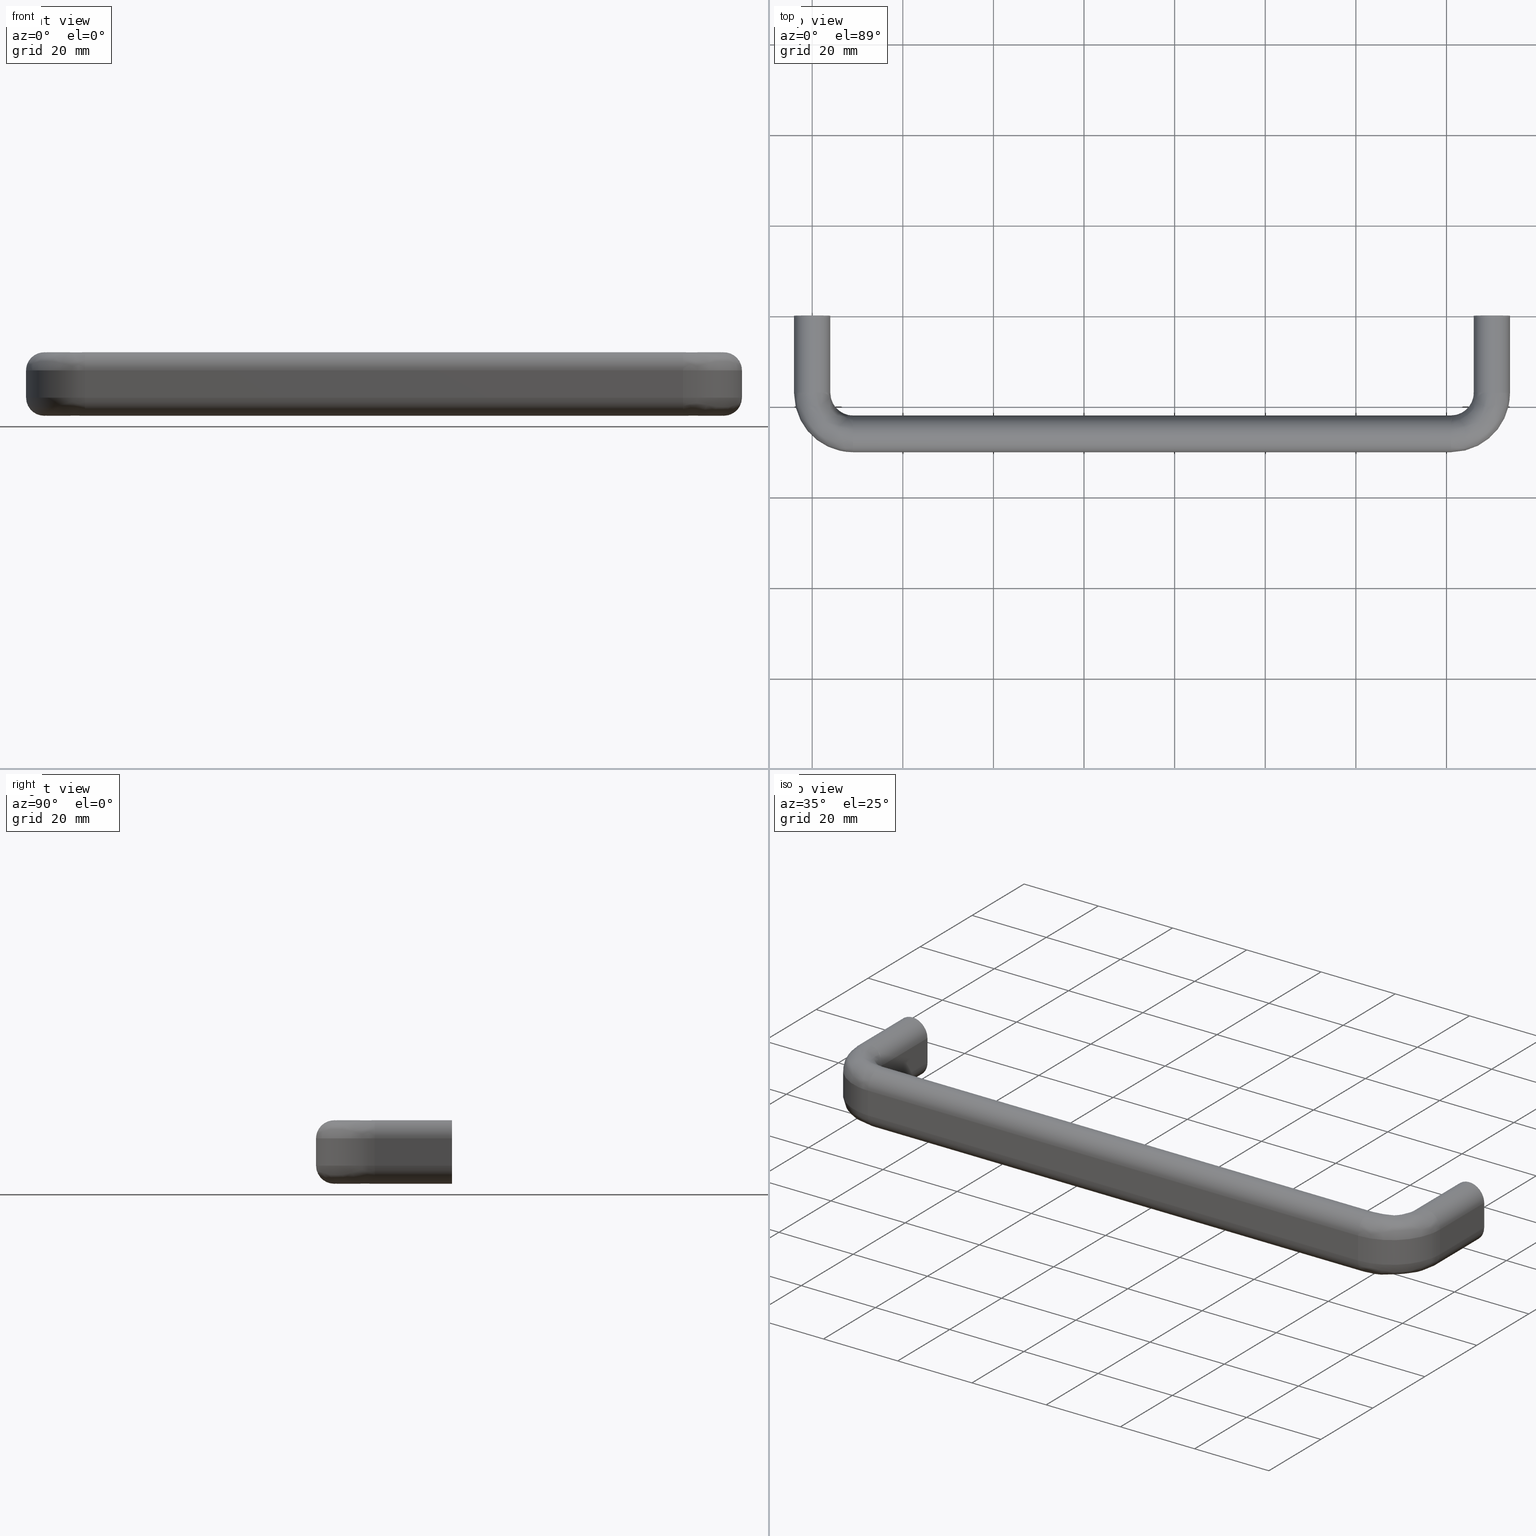
[diagram: canonical four-view strip — front | top / right | iso, engineering-drawing reading convention]
A machine part, canonical four-view strip (front | top / right | iso — engineering-drawing reading convention). The complete STEP part file that produces these views, byte-faithful:
ISO-10303-21;
HEADER;
/****************************************************************
 * Generated by software with PDE/Lib inside                    *
 * PDElib Version 4.4.1-0003, patched  Thursday August 19 11:58 *
 * International Technegroup Inc. (www.iti-oh.com)              *
 ****************************************************************/
FILE_DESCRIPTION((''),'2;1');
FILE_NAME('','2005-10-12T14:15:03',(''),(''),'','CADfix','');
FILE_SCHEMA(('AUTOMOTIVE_DESIGN'));
ENDSEC;
DATA;
#5=APPLICATION_CONTEXT('automotive design');
#6=APPLICATION_PROTOCOL_DEFINITION('Draft International Standard','automotive_design',1998,#5);
#7=PRODUCT_CONTEXT('None',#5,'mechanical');
#8=PRODUCT('pull','','None',(#7));
#9=PRODUCT_RELATED_PRODUCT_CATEGORY('part','description',(#8));
#10=PRODUCT_DEFINITION_FORMATION('None','None',#8);
#11=PRODUCT_DEFINITION_CONTEXT('part definition',#5,'design');
#12=PRODUCT_DEFINITION('None','None',#10,#11);
#18=(NAMED_UNIT(*)PLANE_ANGLE_UNIT()SI_UNIT($,.RADIAN.));
#19=DIMENSIONAL_EXPONENTS(0.0,0.0,0.0,0.0,0.0,0.0,0.0);
#20=PLANE_ANGLE_MEASURE_WITH_UNIT(PLANE_ANGLE_MEASURE(0.017453292500000),#18);
#24=(CONVERSION_BASED_UNIT('DEGREE',#20)NAMED_UNIT(#19)PLANE_ANGLE_UNIT());
#28=(NAMED_UNIT(*)SI_UNIT($,.STERADIAN.)SOLID_ANGLE_UNIT());
#32=(LENGTH_UNIT()NAMED_UNIT(*)SI_UNIT(.MILLI.,.METRE.));
#34=UNCERTAINTY_MEASURE_WITH_UNIT(LENGTH_MEASURE(0.001000000000000),#32,'DISTANCE_ACCURACY_VALUE','');
#36=(GEOMETRIC_REPRESENTATION_CONTEXT(3)GLOBAL_UNCERTAINTY_ASSIGNED_CONTEXT((#34))GLOBAL_UNIT_ASSIGNED_CONTEXT((#24,#28,#32))REPRESENTATION_CONTEXT('None','None'));
#37=AXIS2_PLACEMENT_3D('',#38,#39,#40);
#38=CARTESIAN_POINT('',(0.0,0.0,0.0));
#39=DIRECTION('',(0.0,0.0,1.0));
#40=DIRECTION('',(1.0,0.0,0.0));
#41=ADVANCED_BREP_SHAPE_REPRESENTATION('',(#37,#1303),#36);
#42=PRODUCT_DEFINITION_SHAPE('','',#12);
#43=SHAPE_DEFINITION_REPRESENTATION(#42,#41);
#44=CARTESIAN_POINT('',(-2.492293334332819,-10.250000000000000,0.196147739319614));
#45=CARTESIAN_POINT('',(-2.296145595013206,-10.250000000000002,2.688441073652433));
#46=CARTESIAN_POINT('',(0.196147739319614,-10.250000000000000,2.492293334332819));
#47=CARTESIAN_POINT('',(2.688441073652433,-10.250000000000002,2.296145595013206));
#48=CARTESIAN_POINT('',(2.492293334332819,-10.250000000000000,-0.196147739319614));
#49=CARTESIAN_POINT('',(-2.492293334332819,0.256250000000001,0.196147739319614));
#50=CARTESIAN_POINT('',(-2.296145595013206,0.256250000000001,2.688441073652433));
#51=CARTESIAN_POINT('',(0.196147739319614,0.256250000000001,2.492293334332819));
#52=CARTESIAN_POINT('',(2.688441073652433,0.256250000000001,2.296145595013206));
#53=CARTESIAN_POINT('',(2.492293334332819,0.256250000000001,-0.196147739319614));
#61=(BOUNDED_SURFACE()B_SPLINE_SURFACE(2,1,((#44,#49),(#45,#50),(#46,#51),(#47,#52),(#48,#53)),.UNSPECIFIED.,.F.,.F.,.U.)B_SPLINE_SURFACE_WITH_KNOTS((3,2,3),(2,2),(0.0,4.142135623730949,8.284271247461899),(0.0,10.506250000000000),.UNSPECIFIED.)GEOMETRIC_REPRESENTATION_ITEM()RATIONAL_B_SPLINE_SURFACE(((1.0,1.0),(0.707106781186548,0.707106781186548),(1.0,1.0),(0.707106781186548,0.707106781186548),(1.0,1.0)))REPRESENTATION_ITEM('')SURFACE());
#62=CARTESIAN_POINT('',(0.0,-10.0,2.500000000000000));
#63=VERTEX_POINT('',#62);
#64=CARTESIAN_POINT('',(-2.492293334298638,-10.0,0.196147739753929));
#65=VERTEX_POINT('',#64);
#66=CARTESIAN_POINT('',(0.0,-10.0,2.500000000000000));
#67=CARTESIAN_POINT('',(-2.310976228337587,-10.0,2.500000000000000));
#68=CARTESIAN_POINT('',(-2.492293334298638,-10.0,0.196147739753929));
#76=(BOUNDED_CURVE()B_SPLINE_CURVE(2,(#66,#67,#68),.UNSPECIFIED.,.F.,.U.)B_SPLINE_CURVE_WITH_KNOTS((3,3),(0.0,0.236331300573021),.UNSPECIFIED.)CURVE()GEOMETRIC_REPRESENTATION_ITEM()RATIONAL_B_SPLINE_CURVE((1.0,0.723120658675194,0.969723356047130))REPRESENTATION_ITEM(''));
#77=EDGE_CURVE('',#63,#65,#76,.T.);
#78=ORIENTED_EDGE('',*,*,#77,.T.);
#79=CARTESIAN_POINT('',(-2.492293334298638,-2.775558E-017,0.196147739753929));
#80=VERTEX_POINT('',#79);
#81=CARTESIAN_POINT('',(-2.492293334298638,-10.0,0.196147739753929));
#82=CARTESIAN_POINT('',(-2.492293334298638,-2.775558E-017,0.196147739753929));
#83=QUASI_UNIFORM_CURVE('',1,(#81,#82),.UNSPECIFIED.,.F.,.U.);
#84=EDGE_CURVE('',#65,#80,#83,.T.);
#85=ORIENTED_EDGE('',*,*,#84,.T.);
#86=CARTESIAN_POINT('',(0.0,0.0,2.500000000000000));
#87=VERTEX_POINT('',#86);
#88=CARTESIAN_POINT('',(0.0,0.0,2.500000000000000));
#89=CARTESIAN_POINT('',(-2.310976228337587,0.0,2.500000000000000));
#90=CARTESIAN_POINT('',(-2.492293334298638,-2.775558E-017,0.196147739753929));
#98=(BOUNDED_CURVE()B_SPLINE_CURVE(2,(#88,#89,#90),.UNSPECIFIED.,.F.,.U.)B_SPLINE_CURVE_WITH_KNOTS((3,3),(0.0,0.236331300573021),.UNSPECIFIED.)CURVE()GEOMETRIC_REPRESENTATION_ITEM()RATIONAL_B_SPLINE_CURVE((1.0,0.723120658675194,0.969723356047130))REPRESENTATION_ITEM(''));
#99=EDGE_CURVE('',#87,#80,#98,.T.);
#100=ORIENTED_EDGE('',*,*,#99,.F.);
#101=CARTESIAN_POINT('',(2.492293334298638,-2.775558E-017,-0.196147739753929));
#102=VERTEX_POINT('',#101);
#103=CARTESIAN_POINT('',(2.492293334298637,-2.775558E-017,-0.196147739753929));
#104=CARTESIAN_POINT('',(2.499999999999999,0.0,-0.098225267955506));
#105=CARTESIAN_POINT('',(2.500000000000000,0.0,0.0));
#106=CARTESIAN_POINT('',(2.500000000000000,0.0,2.500000000000000));
#107=CARTESIAN_POINT('',(0.0,0.0,2.500000000000000));
#115=(BOUNDED_CURVE()B_SPLINE_CURVE(2,(#103,#104,#105,#106,#107),.UNSPECIFIED.,.F.,.U.)B_SPLINE_CURVE_WITH_KNOTS((3,2,3),(0.736331300573021,0.750000000000000,1.0),.UNSPECIFIED.)CURVE()GEOMETRIC_REPRESENTATION_ITEM()RATIONAL_B_SPLINE_CURVE((0.969723356047130,0.983986122511354,1.0,0.707106781186548,1.0))REPRESENTATION_ITEM(''));
#116=EDGE_CURVE('',#102,#87,#115,.T.);
#117=ORIENTED_EDGE('',*,*,#116,.F.);
#118=CARTESIAN_POINT('',(2.492293334298638,-10.0,-0.196147739753929));
#119=VERTEX_POINT('',#118);
#120=CARTESIAN_POINT('',(2.492293334298638,-10.0,-0.196147739753929));
#121=CARTESIAN_POINT('',(2.492293334298638,-2.775558E-017,-0.196147739753929));
#122=QUASI_UNIFORM_CURVE('',1,(#120,#121),.UNSPECIFIED.,.F.,.U.);
#123=EDGE_CURVE('',#119,#102,#122,.T.);
#124=ORIENTED_EDGE('',*,*,#123,.F.);
#125=CARTESIAN_POINT('',(2.492293334298637,-10.0,-0.196147739753929));
#126=CARTESIAN_POINT('',(2.499999999999999,-9.999999999999998,-0.098225267955506));
#127=CARTESIAN_POINT('',(2.500000000000000,-10.0,0.0));
#128=CARTESIAN_POINT('',(2.500000000000000,-10.000000000000002,2.500000000000000));
#129=CARTESIAN_POINT('',(0.0,-10.0,2.500000000000000));
#137=(BOUNDED_CURVE()B_SPLINE_CURVE(2,(#125,#126,#127,#128,#129),.UNSPECIFIED.,.F.,.U.)B_SPLINE_CURVE_WITH_KNOTS((3,2,3),(0.736331300573021,0.750000000000000,1.0),.UNSPECIFIED.)CURVE()GEOMETRIC_REPRESENTATION_ITEM()RATIONAL_B_SPLINE_CURVE((0.969723356047130,0.983986122511354,1.0,0.707106781186548,1.0))REPRESENTATION_ITEM(''));
#138=EDGE_CURVE('',#119,#63,#137,.T.);
#139=ORIENTED_EDGE('',*,*,#138,.T.);
#140=EDGE_LOOP('',(#78,#85,#100,#117,#124,#139));
#141=FACE_OUTER_BOUND('',#140,.T.);
#142=ADVANCED_FACE('',(#141),#61,.F.);
#143=CARTESIAN_POINT('',(2.492293334332819,-10.250000000000000,-0.196147739319614));
#144=CARTESIAN_POINT('',(2.296145595013206,-10.250000000000002,-2.688441073652433));
#145=CARTESIAN_POINT('',(-0.196147739319614,-10.250000000000000,-2.492293334332819));
#146=CARTESIAN_POINT('',(-2.688441073652433,-10.250000000000002,-2.296145595013206));
#147=CARTESIAN_POINT('',(-2.492293334332819,-10.250000000000000,0.196147739319614));
#148=CARTESIAN_POINT('',(2.492293334332819,0.256250000000001,-0.196147739319614));
#149=CARTESIAN_POINT('',(2.296145595013206,0.256250000000001,-2.688441073652433));
#150=CARTESIAN_POINT('',(-0.196147739319614,0.256250000000001,-2.492293334332819));
#151=CARTESIAN_POINT('',(-2.688441073652433,0.256250000000001,-2.296145595013206));
#152=CARTESIAN_POINT('',(-2.492293334332819,0.256250000000001,0.196147739319614));
#160=(BOUNDED_SURFACE()B_SPLINE_SURFACE(2,1,((#143,#148),(#144,#149),(#145,#150),(#146,#151),(#147,#152)),.UNSPECIFIED.,.F.,.F.,.U.)B_SPLINE_SURFACE_WITH_KNOTS((3,2,3),(2,2),(0.0,4.142135623730949,8.284271247461899),(0.0,10.506250000000000),.UNSPECIFIED.)GEOMETRIC_REPRESENTATION_ITEM()RATIONAL_B_SPLINE_SURFACE(((1.0,1.0),(0.707106781186548,0.707106781186548),(1.0,1.0),(0.707106781186548,0.707106781186548),(1.0,1.0)))REPRESENTATION_ITEM('')SURFACE());
#161=CARTESIAN_POINT('',(0.0,-10.0,-2.500000000000000));
#162=VERTEX_POINT('',#161);
#163=CARTESIAN_POINT('',(-2.492293334298637,-10.0,0.196147739753929));
#164=CARTESIAN_POINT('',(-2.499999999999999,-9.999999999999998,0.098225267955506));
#165=CARTESIAN_POINT('',(-2.500000000000000,-10.0,0.0));
#166=CARTESIAN_POINT('',(-2.500000000000000,-10.000000000000002,-2.500000000000000));
#167=CARTESIAN_POINT('',(0.0,-10.0,-2.500000000000000));
#175=(BOUNDED_CURVE()B_SPLINE_CURVE(2,(#163,#164,#165,#166,#167),.UNSPECIFIED.,.F.,.U.)B_SPLINE_CURVE_WITH_KNOTS((3,2,3),(0.236331300573021,0.250000000000000,0.500000000000000),.UNSPECIFIED.)CURVE()GEOMETRIC_REPRESENTATION_ITEM()RATIONAL_B_SPLINE_CURVE((0.969723356047130,0.983986122511354,1.0,0.707106781186548,1.0))REPRESENTATION_ITEM(''));
#176=EDGE_CURVE('',#65,#162,#175,.T.);
#177=ORIENTED_EDGE('',*,*,#176,.T.);
#178=CARTESIAN_POINT('',(0.0,-10.0,-2.500000000000000));
#179=CARTESIAN_POINT('',(2.310976228337585,-9.999999999999998,-2.500000000000000));
#180=CARTESIAN_POINT('',(2.492293334298638,-10.0,-0.196147739753929));
#188=(BOUNDED_CURVE()B_SPLINE_CURVE(2,(#178,#179,#180),.UNSPECIFIED.,.F.,.U.)B_SPLINE_CURVE_WITH_KNOTS((3,3),(0.500000000000000,0.736331300573021),.UNSPECIFIED.)CURVE()GEOMETRIC_REPRESENTATION_ITEM()RATIONAL_B_SPLINE_CURVE((1.0,0.723120658675194,0.969723356047129))REPRESENTATION_ITEM(''));
#189=EDGE_CURVE('',#162,#119,#188,.T.);
#190=ORIENTED_EDGE('',*,*,#189,.T.);
#191=ORIENTED_EDGE('',*,*,#123,.T.);
#192=CARTESIAN_POINT('',(0.0,0.0,-2.500000000000000));
#193=VERTEX_POINT('',#192);
#194=CARTESIAN_POINT('',(0.0,0.0,-2.500000000000000));
#195=CARTESIAN_POINT('',(2.310976228337585,0.0,-2.500000000000000));
#196=CARTESIAN_POINT('',(2.492293334298638,-2.775558E-017,-0.196147739753929));
#204=(BOUNDED_CURVE()B_SPLINE_CURVE(2,(#194,#195,#196),.UNSPECIFIED.,.F.,.U.)B_SPLINE_CURVE_WITH_KNOTS((3,3),(0.500000000000000,0.736331300573021),.UNSPECIFIED.)CURVE()GEOMETRIC_REPRESENTATION_ITEM()RATIONAL_B_SPLINE_CURVE((1.0,0.723120658675194,0.969723356047129))REPRESENTATION_ITEM(''));
#205=EDGE_CURVE('',#193,#102,#204,.T.);
#206=ORIENTED_EDGE('',*,*,#205,.F.);
#207=CARTESIAN_POINT('',(-2.492293334298637,-2.775558E-017,0.196147739753929));
#208=CARTESIAN_POINT('',(-2.500000000000000,0.0,0.098225267955506));
#209=CARTESIAN_POINT('',(-2.500000000000000,0.0,0.0));
#210=CARTESIAN_POINT('',(-2.500000000000000,0.0,-2.500000000000000));
#211=CARTESIAN_POINT('',(0.0,0.0,-2.500000000000000));
#219=(BOUNDED_CURVE()B_SPLINE_CURVE(2,(#207,#208,#209,#210,#211),.UNSPECIFIED.,.F.,.U.)B_SPLINE_CURVE_WITH_KNOTS((3,2,3),(0.236331300573021,0.250000000000000,0.500000000000000),.UNSPECIFIED.)CURVE()GEOMETRIC_REPRESENTATION_ITEM()RATIONAL_B_SPLINE_CURVE((0.969723356047130,0.983986122511354,1.0,0.707106781186548,1.0))REPRESENTATION_ITEM(''));
#220=EDGE_CURVE('',#80,#193,#219,.T.);
#221=ORIENTED_EDGE('',*,*,#220,.F.);
#222=ORIENTED_EDGE('',*,*,#84,.F.);
#223=EDGE_LOOP('',(#177,#190,#191,#206,#221,#222));
#224=FACE_OUTER_BOUND('',#223,.T.);
#225=ADVANCED_FACE('',(#224),#160,.F.);
#226=CARTESIAN_POINT('',(147.507706665667200,-10.250000000000000,0.196147739319614));
#227=CARTESIAN_POINT('',(147.703854404986830,-10.250000000000002,2.688441073652433));
#228=CARTESIAN_POINT('',(150.196147739319600,-10.250000000000000,2.492293334332819));
#229=CARTESIAN_POINT('',(152.688441073652430,-10.250000000000002,2.296145595013206));
#230=CARTESIAN_POINT('',(152.492293334332800,-10.250000000000000,-0.196147739319614));
#231=CARTESIAN_POINT('',(147.507706665667200,0.256250000000001,0.196147739319614));
#232=CARTESIAN_POINT('',(147.703854404986830,0.256250000000001,2.688441073652433));
#233=CARTESIAN_POINT('',(150.196147739319600,0.256250000000001,2.492293334332819));
#234=CARTESIAN_POINT('',(152.688441073652430,0.256250000000001,2.296145595013206));
#235=CARTESIAN_POINT('',(152.492293334332800,0.256250000000001,-0.196147739319614));
#243=(BOUNDED_SURFACE()B_SPLINE_SURFACE(2,1,((#226,#231),(#227,#232),(#228,#233),(#229,#234),(#230,#235)),.UNSPECIFIED.,.F.,.F.,.U.)B_SPLINE_SURFACE_WITH_KNOTS((3,2,3),(2,2),(0.0,4.142135623730970,8.284271247461939),(0.0,10.506250000000000),.UNSPECIFIED.)GEOMETRIC_REPRESENTATION_ITEM()RATIONAL_B_SPLINE_SURFACE(((1.0,1.0),(0.707106781186548,0.707106781186548),(1.0,1.0),(0.707106781186548,0.707106781186548),(1.0,1.0)))REPRESENTATION_ITEM('')SURFACE());
#244=CARTESIAN_POINT('',(150.0,-10.0,2.500000000000000));
#245=VERTEX_POINT('',#244);
#246=CARTESIAN_POINT('',(147.507706665701310,-10.0,0.196147739753928));
#247=VERTEX_POINT('',#246);
#248=CARTESIAN_POINT('',(150.0,-10.0,2.500000000000000));
#249=CARTESIAN_POINT('',(147.689023771662360,-10.0,2.500000000000000));
#250=CARTESIAN_POINT('',(147.507706665701250,-10.0,0.196147739753929));
#258=(BOUNDED_CURVE()B_SPLINE_CURVE(2,(#248,#249,#250),.UNSPECIFIED.,.F.,.U.)B_SPLINE_CURVE_WITH_KNOTS((3,3),(0.0,0.236331300573021),.UNSPECIFIED.)CURVE()GEOMETRIC_REPRESENTATION_ITEM()RATIONAL_B_SPLINE_CURVE((1.0,0.723120658675193,0.969723356047130))REPRESENTATION_ITEM(''));
#259=EDGE_CURVE('',#245,#247,#258,.T.);
#260=ORIENTED_EDGE('',*,*,#259,.T.);
#261=CARTESIAN_POINT('',(147.507706665701390,-2.775558E-017,0.196147739753929));
#262=VERTEX_POINT('',#261);
#263=CARTESIAN_POINT('',(147.507706665701310,-10.0,0.196147739753928));
#264=CARTESIAN_POINT('',(147.507706665701390,-2.775558E-017,0.196147739753929));
#265=QUASI_UNIFORM_CURVE('',1,(#263,#264),.UNSPECIFIED.,.F.,.U.);
#266=EDGE_CURVE('',#247,#262,#265,.T.);
#267=ORIENTED_EDGE('',*,*,#266,.T.);
#268=CARTESIAN_POINT('',(150.0,0.0,2.500000000000000));
#269=VERTEX_POINT('',#268);
#270=CARTESIAN_POINT('',(150.0,0.0,2.500000000000000));
#271=CARTESIAN_POINT('',(147.689023771662450,0.0,2.500000000000000));
#272=CARTESIAN_POINT('',(147.507706665701360,-2.775558E-017,0.196147739753929));
#280=(BOUNDED_CURVE()B_SPLINE_CURVE(2,(#270,#271,#272),.UNSPECIFIED.,.F.,.U.)B_SPLINE_CURVE_WITH_KNOTS((3,3),(0.0,0.236331300573021),.UNSPECIFIED.)CURVE()GEOMETRIC_REPRESENTATION_ITEM()RATIONAL_B_SPLINE_CURVE((1.0,0.723120658675194,0.969723356047130))REPRESENTATION_ITEM(''));
#281=EDGE_CURVE('',#269,#262,#280,.T.);
#282=ORIENTED_EDGE('',*,*,#281,.F.);
#283=CARTESIAN_POINT('',(152.492293334298610,-2.775558E-017,-0.196147739753930));
#284=VERTEX_POINT('',#283);
#285=CARTESIAN_POINT('',(152.492293334298610,-2.775558E-017,-0.196147739753930));
#286=CARTESIAN_POINT('',(152.499999999999970,0.0,-0.098225267955507));
#287=CARTESIAN_POINT('',(152.500000000000000,0.0,0.0));
#288=CARTESIAN_POINT('',(152.500000000000000,0.0,2.500000000000000));
#289=CARTESIAN_POINT('',(150.0,0.0,2.500000000000000));
#297=(BOUNDED_CURVE()B_SPLINE_CURVE(2,(#285,#286,#287,#288,#289),.UNSPECIFIED.,.F.,.U.)B_SPLINE_CURVE_WITH_KNOTS((3,2,3),(0.736331300573021,0.750000000000000,1.0),.UNSPECIFIED.)CURVE()GEOMETRIC_REPRESENTATION_ITEM()RATIONAL_B_SPLINE_CURVE((0.969723356047130,0.983986122511354,1.0,0.707106781186548,1.0))REPRESENTATION_ITEM(''));
#298=EDGE_CURVE('',#284,#269,#297,.T.);
#299=ORIENTED_EDGE('',*,*,#298,.F.);
#300=CARTESIAN_POINT('',(152.492293334298610,-10.0,-0.196147739753930));
#301=VERTEX_POINT('',#300);
#302=CARTESIAN_POINT('',(152.492293334298610,-10.0,-0.196147739753930));
#303=CARTESIAN_POINT('',(152.492293334298610,-2.775558E-017,-0.196147739753930));
#304=QUASI_UNIFORM_CURVE('',1,(#302,#303),.UNSPECIFIED.,.F.,.U.);
#305=EDGE_CURVE('',#301,#284,#304,.T.);
#306=ORIENTED_EDGE('',*,*,#305,.F.);
#307=CARTESIAN_POINT('',(152.492293334298610,-10.0,-0.196147739753930));
#308=CARTESIAN_POINT('',(152.499999999999970,-9.999999999999998,-0.098225267955507));
#309=CARTESIAN_POINT('',(152.500000000000000,-10.0,0.0));
#310=CARTESIAN_POINT('',(152.500000000000000,-10.000000000000002,2.500000000000000));
#311=CARTESIAN_POINT('',(150.0,-10.0,2.500000000000000));
#319=(BOUNDED_CURVE()B_SPLINE_CURVE(2,(#307,#308,#309,#310,#311),.UNSPECIFIED.,.F.,.U.)B_SPLINE_CURVE_WITH_KNOTS((3,2,3),(0.736331300573021,0.750000000000000,1.0),.UNSPECIFIED.)CURVE()GEOMETRIC_REPRESENTATION_ITEM()RATIONAL_B_SPLINE_CURVE((0.969723356047130,0.983986122511354,1.0,0.707106781186548,1.0))REPRESENTATION_ITEM(''));
#320=EDGE_CURVE('',#301,#245,#319,.T.);
#321=ORIENTED_EDGE('',*,*,#320,.T.);
#322=EDGE_LOOP('',(#260,#267,#282,#299,#306,#321));
#323=FACE_OUTER_BOUND('',#322,.T.);
#324=ADVANCED_FACE('',(#323),#243,.F.);
#325=CARTESIAN_POINT('',(152.492293334332800,-10.250000000000000,-0.196147739319614));
#326=CARTESIAN_POINT('',(152.296145595013200,-10.250000000000002,-2.688441073652433));
#327=CARTESIAN_POINT('',(149.803852260680400,-10.250000000000000,-2.492293334332819));
#328=CARTESIAN_POINT('',(147.311558926347630,-10.250000000000002,-2.296145595013206));
#329=CARTESIAN_POINT('',(147.507706665667200,-10.250000000000000,0.196147739319614));
#330=CARTESIAN_POINT('',(152.492293334332800,0.256250000000001,-0.196147739319614));
#331=CARTESIAN_POINT('',(152.296145595013200,0.256250000000001,-2.688441073652433));
#332=CARTESIAN_POINT('',(149.803852260680400,0.256250000000001,-2.492293334332819));
#333=CARTESIAN_POINT('',(147.311558926347630,0.256250000000001,-2.296145595013206));
#334=CARTESIAN_POINT('',(147.507706665667200,0.256250000000001,0.196147739319614));
#342=(BOUNDED_SURFACE()B_SPLINE_SURFACE(2,1,((#325,#330),(#326,#331),(#327,#332),(#328,#333),(#329,#334)),.UNSPECIFIED.,.F.,.F.,.U.)B_SPLINE_SURFACE_WITH_KNOTS((3,2,3),(2,2),(0.0,4.142135623730995,8.284271247461989),(0.0,10.506250000000000),.UNSPECIFIED.)GEOMETRIC_REPRESENTATION_ITEM()RATIONAL_B_SPLINE_SURFACE(((1.0,1.0),(0.707106781186548,0.707106781186548),(1.0,1.0),(0.707106781186548,0.707106781186548),(1.0,1.0)))REPRESENTATION_ITEM('')SURFACE());
#343=CARTESIAN_POINT('',(150.0,-10.0,-2.500000000000000));
#344=VERTEX_POINT('',#343);
#345=CARTESIAN_POINT('',(147.507706665701310,-9.999999999999998,0.196147739753929));
#346=CARTESIAN_POINT('',(147.499999999999970,-10.000000000000002,0.098225267955505));
#347=CARTESIAN_POINT('',(147.500000000000000,-10.0,0.0));
#348=CARTESIAN_POINT('',(147.500000000000060,-10.000000000000002,-2.500000000000000));
#349=CARTESIAN_POINT('',(150.0,-10.0,-2.500000000000000));
#357=(BOUNDED_CURVE()B_SPLINE_CURVE(2,(#345,#346,#347,#348,#349),.UNSPECIFIED.,.F.,.U.)B_SPLINE_CURVE_WITH_KNOTS((3,2,3),(0.236331300573021,0.250000000000000,0.500000000000000),.UNSPECIFIED.)CURVE()GEOMETRIC_REPRESENTATION_ITEM()RATIONAL_B_SPLINE_CURVE((0.969723356047130,0.983986122511354,1.0,0.707106781186548,1.0))REPRESENTATION_ITEM(''));
#358=EDGE_CURVE('',#247,#344,#357,.T.);
#359=ORIENTED_EDGE('',*,*,#358,.T.);
#360=CARTESIAN_POINT('',(150.0,-10.0,-2.500000000000000));
#361=CARTESIAN_POINT('',(152.310976228337580,-9.999999999999998,-2.500000000000000));
#362=CARTESIAN_POINT('',(152.492293334298670,-10.0,-0.196147739753930));
#370=(BOUNDED_CURVE()B_SPLINE_CURVE(2,(#360,#361,#362),.UNSPECIFIED.,.F.,.U.)B_SPLINE_CURVE_WITH_KNOTS((3,3),(0.500000000000000,0.736331300573021),.UNSPECIFIED.)CURVE()GEOMETRIC_REPRESENTATION_ITEM()RATIONAL_B_SPLINE_CURVE((1.0,0.723120658675194,0.969723356047129))REPRESENTATION_ITEM(''));
#371=EDGE_CURVE('',#344,#301,#370,.T.);
#372=ORIENTED_EDGE('',*,*,#371,.T.);
#373=ORIENTED_EDGE('',*,*,#305,.T.);
#374=CARTESIAN_POINT('',(150.0,0.0,-2.500000000000000));
#375=VERTEX_POINT('',#374);
#376=CARTESIAN_POINT('',(150.0,0.0,-2.500000000000000));
#377=CARTESIAN_POINT('',(152.310976228337580,0.0,-2.500000000000000));
#378=CARTESIAN_POINT('',(152.492293334298670,-2.775558E-017,-0.196147739753930));
#386=(BOUNDED_CURVE()B_SPLINE_CURVE(2,(#376,#377,#378),.UNSPECIFIED.,.F.,.U.)B_SPLINE_CURVE_WITH_KNOTS((3,3),(0.500000000000000,0.736331300573021),.UNSPECIFIED.)CURVE()GEOMETRIC_REPRESENTATION_ITEM()RATIONAL_B_SPLINE_CURVE((1.0,0.723120658675194,0.969723356047129))REPRESENTATION_ITEM(''));
#387=EDGE_CURVE('',#375,#284,#386,.T.);
#388=ORIENTED_EDGE('',*,*,#387,.F.);
#389=CARTESIAN_POINT('',(147.507706665701330,-2.775558E-017,0.196147739753929));
#390=CARTESIAN_POINT('',(147.500000000000000,0.0,0.098225267955506));
#391=CARTESIAN_POINT('',(147.500000000000000,0.0,0.0));
#392=CARTESIAN_POINT('',(147.500000000000060,0.0,-2.500000000000000));
#393=CARTESIAN_POINT('',(150.0,0.0,-2.500000000000000));
#401=(BOUNDED_CURVE()B_SPLINE_CURVE(2,(#389,#390,#391,#392,#393),.UNSPECIFIED.,.F.,.U.)B_SPLINE_CURVE_WITH_KNOTS((3,2,3),(0.236331300573021,0.250000000000000,0.500000000000000),.UNSPECIFIED.)CURVE()GEOMETRIC_REPRESENTATION_ITEM()RATIONAL_B_SPLINE_CURVE((0.969723356047130,0.983986122511354,1.0,0.707106781186548,1.0))REPRESENTATION_ITEM(''));
#402=EDGE_CURVE('',#262,#375,#401,.T.);
#403=ORIENTED_EDGE('',*,*,#402,.F.);
#404=ORIENTED_EDGE('',*,*,#266,.F.);
#405=EDGE_LOOP('',(#359,#372,#373,#388,#403,#404));
#406=FACE_OUTER_BOUND('',#405,.T.);
#407=ADVANCED_FACE('',(#406),#342,.F.);
#408=CARTESIAN_POINT('',(-2.748986881815180,-10.0,2.749749990309030));
#409=CARTESIAN_POINT('',(2.748987015925630,-10.0,2.749749990309030));
#410=CARTESIAN_POINT('',(-2.748986881815180,-10.0,-2.749750124419481));
#411=CARTESIAN_POINT('',(2.748987015925630,-10.0,-2.749750124419481));
#412=B_SPLINE_SURFACE_WITH_KNOTS('',1,1,((#408,#410),(#409,#411)),.UNSPECIFIED.,.F.,.F.,.U.,(2,2),(2,2),(0.0,5.497973897740810),(0.0,5.499500114728511),.UNSPECIFIED.);
#413=ORIENTED_EDGE('',*,*,#138,.F.);
#414=ORIENTED_EDGE('',*,*,#189,.F.);
#415=ORIENTED_EDGE('',*,*,#176,.F.);
#416=ORIENTED_EDGE('',*,*,#77,.F.);
#417=EDGE_LOOP('',(#413,#414,#415,#416));
#418=FACE_OUTER_BOUND('',#417,.T.);
#419=ADVANCED_FACE('',(#418),#412,.T.);
#420=CARTESIAN_POINT('',(147.251005251087010,-10.0,2.749749990309030));
#421=CARTESIAN_POINT('',(152.748994883023410,-10.0,2.749749990309030));
#422=CARTESIAN_POINT('',(147.251005251087010,-10.0,-2.749750124419481));
#423=CARTESIAN_POINT('',(152.748994883023410,-10.0,-2.749750124419481));
#424=B_SPLINE_SURFACE_WITH_KNOTS('',1,1,((#420,#422),(#421,#423)),.UNSPECIFIED.,.F.,.F.,.U.,(2,2),(2,2),(0.0,5.497989631936491),(0.0,5.499500114728511),.UNSPECIFIED.);
#425=ORIENTED_EDGE('',*,*,#320,.F.);
#426=ORIENTED_EDGE('',*,*,#371,.F.);
#427=ORIENTED_EDGE('',*,*,#358,.F.);
#428=ORIENTED_EDGE('',*,*,#259,.F.);
#429=EDGE_LOOP('',(#425,#426,#427,#428));
#430=FACE_OUTER_BOUND('',#429,.T.);
#431=ADVANCED_FACE('',(#430),#424,.T.);
#432=CARTESIAN_POINT('',(146.001370700097790,-17.425000000000001,-2.895292206768502));
#433=CARTESIAN_POINT('',(146.001370700097790,0.435625000000002,-2.895292206768502));
#434=CARTESIAN_POINT('',(145.891031708628390,-17.424999999999997,-7.108968291371596));
#435=CARTESIAN_POINT('',(145.891031708628390,0.435625000000002,-7.108968291371596));
#436=CARTESIAN_POINT('',(150.104707793231510,-17.425000000000001,-6.998629299902234));
#437=CARTESIAN_POINT('',(150.104707793231510,0.435625000000002,-6.998629299902234));
#438=CARTESIAN_POINT('',(154.318383877834610,-17.424999999999997,-6.888290308432900));
#439=CARTESIAN_POINT('',(154.318383877834610,0.435625000000002,-6.888290308432900));
#440=CARTESIAN_POINT('',(153.987669334932490,-17.425000000000001,-2.686163617088653));
#441=CARTESIAN_POINT('',(153.987669334932490,0.435625000000002,-2.686163617088653));
#449=(BOUNDED_SURFACE()B_SPLINE_SURFACE(1,2,((#432,#434,#436,#438,#440),(#433,#435,#437,#439,#441)),.UNSPECIFIED.,.F.,.F.,.U.)B_SPLINE_SURFACE_WITH_KNOTS((2,2),(3,2,3),(0.0,17.860624999999999),(0.0,6.874142495469411,13.748284990938821),.UNSPECIFIED.)GEOMETRIC_REPRESENTATION_ITEM()RATIONAL_B_SPLINE_SURFACE(((1.0,0.688354575693754,1.0,0.688354575693754,1.0),(1.0,0.688354575693754,1.0,0.688354575693754,1.0)))REPRESENTATION_ITEM('')SURFACE());
#450=CARTESIAN_POINT('',(154.0,0.0,-3.0));
#451=VERTEX_POINT('',#450);
#452=CARTESIAN_POINT('',(146.0,0.0,-3.0));
#453=VERTEX_POINT('',#452);
#454=CARTESIAN_POINT('',(154.0,0.0,-3.0));
#455=CARTESIAN_POINT('',(153.999999999999970,0.0,-6.999999999999999));
#456=CARTESIAN_POINT('',(150.0,0.0,-7.0));
#457=CARTESIAN_POINT('',(146.000000000000090,0.0,-6.999999999999999));
#458=CARTESIAN_POINT('',(146.0,0.0,-3.0));
#466=(BOUNDED_CURVE()B_SPLINE_CURVE(2,(#454,#455,#456,#457,#458),.UNSPECIFIED.,.F.,.U.)B_SPLINE_CURVE_WITH_KNOTS((3,2,3),(0.0,0.500000000000000,1.0),.UNSPECIFIED.)CURVE()GEOMETRIC_REPRESENTATION_ITEM()RATIONAL_B_SPLINE_CURVE((1.0,0.707106781186548,1.0,0.707106781186548,1.0))REPRESENTATION_ITEM(''));
#467=EDGE_CURVE('',#451,#453,#466,.T.);
#468=ORIENTED_EDGE('',*,*,#467,.F.);
#469=CARTESIAN_POINT('',(154.0,-17.0,-3.0));
#470=VERTEX_POINT('',#469);
#471=CARTESIAN_POINT('',(154.0,-17.0,-3.0));
#472=CARTESIAN_POINT('',(154.0,0.0,-3.0));
#473=QUASI_UNIFORM_CURVE('',1,(#471,#472),.UNSPECIFIED.,.F.,.U.);
#474=EDGE_CURVE('',#470,#451,#473,.T.);
#475=ORIENTED_EDGE('',*,*,#474,.F.);
#476=CARTESIAN_POINT('',(146.0,-17.0,-3.0));
#477=VERTEX_POINT('',#476);
#478=CARTESIAN_POINT('',(154.0,-17.0,-3.0));
#479=CARTESIAN_POINT('',(153.999999999999970,-17.000000000000004,-6.999999999999999));
#480=CARTESIAN_POINT('',(150.0,-17.0,-7.0));
#481=CARTESIAN_POINT('',(146.000000000000090,-17.000000000000004,-6.999999999999999));
#482=CARTESIAN_POINT('',(146.0,-17.0,-3.0));
#490=(BOUNDED_CURVE()B_SPLINE_CURVE(2,(#478,#479,#480,#481,#482),.UNSPECIFIED.,.F.,.U.)B_SPLINE_CURVE_WITH_KNOTS((3,2,3),(0.0,0.500000000000000,1.0),.UNSPECIFIED.)CURVE()GEOMETRIC_REPRESENTATION_ITEM()RATIONAL_B_SPLINE_CURVE((1.0,0.707106781186548,1.0,0.707106781186548,1.0))REPRESENTATION_ITEM(''));
#491=EDGE_CURVE('',#470,#477,#490,.T.);
#492=ORIENTED_EDGE('',*,*,#491,.T.);
#493=CARTESIAN_POINT('',(146.0,-17.0,-3.0));
#494=CARTESIAN_POINT('',(146.0,0.0,-3.0));
#495=QUASI_UNIFORM_CURVE('',1,(#493,#494),.UNSPECIFIED.,.F.,.U.);
#496=EDGE_CURVE('',#477,#453,#495,.T.);
#497=ORIENTED_EDGE('',*,*,#496,.T.);
#498=EDGE_LOOP('',(#468,#475,#492,#497));
#499=FACE_OUTER_BOUND('',#498,.T.);
#500=ADVANCED_FACE('',(#499),#449,.T.);
#501=CARTESIAN_POINT('',(154.0,-17.849149967050710,3.299699988370836));
#502=CARTESIAN_POINT('',(154.0,-17.849149967050710,-3.299700149303376));
#503=CARTESIAN_POINT('',(154.0,0.849150423026235,3.299699988370836));
#504=CARTESIAN_POINT('',(154.0,0.849150423026235,-3.299700149303376));
#505=B_SPLINE_SURFACE_WITH_KNOTS('',1,1,((#501,#503),(#502,#504)),.UNSPECIFIED.,.F.,.F.,.U.,(2,2),(2,2),(0.0,6.599400137674213),(0.0,18.698300390076941),.UNSPECIFIED.);
#506=ORIENTED_EDGE('',*,*,#474,.T.);
#507=CARTESIAN_POINT('',(154.0,0.0,3.0));
#508=VERTEX_POINT('',#507);
#509=CARTESIAN_POINT('',(154.0,0.0,3.0));
#510=CARTESIAN_POINT('',(154.0,0.0,-3.0));
#511=QUASI_UNIFORM_CURVE('',1,(#509,#510),.UNSPECIFIED.,.F.,.U.);
#512=EDGE_CURVE('',#508,#451,#511,.T.);
#513=ORIENTED_EDGE('',*,*,#512,.F.);
#514=CARTESIAN_POINT('',(154.0,-17.0,3.0));
#515=VERTEX_POINT('',#514);
#516=CARTESIAN_POINT('',(154.0,-17.0,3.0));
#517=CARTESIAN_POINT('',(154.0,0.0,3.0));
#518=QUASI_UNIFORM_CURVE('',1,(#516,#517),.UNSPECIFIED.,.F.,.U.);
#519=EDGE_CURVE('',#515,#508,#518,.T.);
#520=ORIENTED_EDGE('',*,*,#519,.F.);
#521=CARTESIAN_POINT('',(154.0,-17.0,3.0));
#522=CARTESIAN_POINT('',(154.0,-17.0,-3.0));
#523=QUASI_UNIFORM_CURVE('',1,(#521,#522),.UNSPECIFIED.,.F.,.U.);
#524=EDGE_CURVE('',#515,#470,#523,.T.);
#525=ORIENTED_EDGE('',*,*,#524,.T.);
#526=EDGE_LOOP('',(#506,#513,#520,#525));
#527=FACE_OUTER_BOUND('',#526,.T.);
#528=ADVANCED_FACE('',(#527),#505,.T.);
#529=CARTESIAN_POINT('',(153.998629299902210,-17.425000000000001,2.895292206768502));
#530=CARTESIAN_POINT('',(153.998629299902210,0.435625000000002,2.895292206768502));
#531=CARTESIAN_POINT('',(154.108968291371610,-17.425000000000008,7.108968291371617));
#532=CARTESIAN_POINT('',(154.108968291371610,0.435625000000002,7.108968291371617));
#533=CARTESIAN_POINT('',(149.895292206768490,-17.425000000000001,6.998629299902262));
#534=CARTESIAN_POINT('',(149.895292206768490,0.435625000000002,6.998629299902262));
#535=CARTESIAN_POINT('',(145.681616122165370,-17.425000000000008,6.888290308432921));
#536=CARTESIAN_POINT('',(145.681616122165370,0.435625000000002,6.888290308432921));
#537=CARTESIAN_POINT('',(146.012330665067510,-17.425000000000001,2.686163617088653));
#538=CARTESIAN_POINT('',(146.012330665067510,0.435625000000002,2.686163617088653));
#546=(BOUNDED_SURFACE()B_SPLINE_SURFACE(1,2,((#529,#531,#533,#535,#537),(#530,#532,#534,#536,#538)),.UNSPECIFIED.,.F.,.F.,.U.)B_SPLINE_SURFACE_WITH_KNOTS((2,2),(3,2,3),(0.0,17.860625000000010),(0.0,6.874142495469436,13.748284990938870),.UNSPECIFIED.)GEOMETRIC_REPRESENTATION_ITEM()RATIONAL_B_SPLINE_SURFACE(((1.0,0.688354575693754,1.0,0.688354575693754,1.0),(1.0,0.688354575693754,1.0,0.688354575693754,1.0)))REPRESENTATION_ITEM('')SURFACE());
#547=ORIENTED_EDGE('',*,*,#519,.T.);
#548=CARTESIAN_POINT('',(146.0,0.0,3.0));
#549=VERTEX_POINT('',#548);
#550=CARTESIAN_POINT('',(146.0,0.0,3.0));
#551=CARTESIAN_POINT('',(146.000000000000090,0.0,6.999999999999999));
#552=CARTESIAN_POINT('',(150.0,0.0,7.0));
#553=CARTESIAN_POINT('',(153.999999999999970,0.0,6.999999999999999));
#554=CARTESIAN_POINT('',(154.0,0.0,3.0));
#562=(BOUNDED_CURVE()B_SPLINE_CURVE(2,(#550,#551,#552,#553,#554),.UNSPECIFIED.,.F.,.U.)B_SPLINE_CURVE_WITH_KNOTS((3,2,3),(0.0,0.500000000000000,1.0),.UNSPECIFIED.)CURVE()GEOMETRIC_REPRESENTATION_ITEM()RATIONAL_B_SPLINE_CURVE((1.0,0.707106781186548,1.0,0.707106781186548,1.0))REPRESENTATION_ITEM(''));
#563=EDGE_CURVE('',#549,#508,#562,.T.);
#564=ORIENTED_EDGE('',*,*,#563,.F.);
#565=CARTESIAN_POINT('',(146.0,-17.0,3.0));
#566=VERTEX_POINT('',#565);
#567=CARTESIAN_POINT('',(146.0,-17.0,3.0));
#568=CARTESIAN_POINT('',(146.0,0.0,3.0));
#569=QUASI_UNIFORM_CURVE('',1,(#567,#568),.UNSPECIFIED.,.F.,.U.);
#570=EDGE_CURVE('',#566,#549,#569,.T.);
#571=ORIENTED_EDGE('',*,*,#570,.F.);
#572=CARTESIAN_POINT('',(146.0,-17.0,3.0));
#573=CARTESIAN_POINT('',(146.000000000000090,-17.000000000000004,6.999999999999999));
#574=CARTESIAN_POINT('',(150.0,-17.0,7.0));
#575=CARTESIAN_POINT('',(153.999999999999970,-17.000000000000004,6.999999999999999));
#576=CARTESIAN_POINT('',(154.0,-17.0,3.0));
#584=(BOUNDED_CURVE()B_SPLINE_CURVE(2,(#572,#573,#574,#575,#576),.UNSPECIFIED.,.F.,.U.)B_SPLINE_CURVE_WITH_KNOTS((3,2,3),(0.0,0.500000000000000,1.0),.UNSPECIFIED.)CURVE()GEOMETRIC_REPRESENTATION_ITEM()RATIONAL_B_SPLINE_CURVE((1.0,0.707106781186548,1.0,0.707106781186548,1.0))REPRESENTATION_ITEM(''));
#585=EDGE_CURVE('',#566,#515,#584,.T.);
#586=ORIENTED_EDGE('',*,*,#585,.T.);
#587=EDGE_LOOP('',(#547,#564,#571,#586));
#588=FACE_OUTER_BOUND('',#587,.T.);
#589=ADVANCED_FACE('',(#588),#546,.T.);
#590=CARTESIAN_POINT('',(146.0,-17.849149967050710,-3.299699988370836));
#591=CARTESIAN_POINT('',(146.0,-17.849149967050710,3.299700149303376));
#592=CARTESIAN_POINT('',(146.0,0.849150423026235,-3.299699988370836));
#593=CARTESIAN_POINT('',(146.0,0.849150423026235,3.299700149303376));
#594=B_SPLINE_SURFACE_WITH_KNOTS('',1,1,((#590,#592),(#591,#593)),.UNSPECIFIED.,.F.,.F.,.U.,(2,2),(2,2),(0.0,6.599400137674213),(0.0,18.698300390076941),.UNSPECIFIED.);
#595=ORIENTED_EDGE('',*,*,#570,.T.);
#596=CARTESIAN_POINT('',(146.0,0.0,-3.0));
#597=CARTESIAN_POINT('',(146.0,0.0,3.0));
#598=QUASI_UNIFORM_CURVE('',1,(#596,#597),.UNSPECIFIED.,.F.,.U.);
#599=EDGE_CURVE('',#453,#549,#598,.T.);
#600=ORIENTED_EDGE('',*,*,#599,.F.);
#601=ORIENTED_EDGE('',*,*,#496,.F.);
#602=CARTESIAN_POINT('',(146.0,-17.0,-3.0));
#603=CARTESIAN_POINT('',(146.0,-17.0,3.0));
#604=QUASI_UNIFORM_CURVE('',1,(#602,#603),.UNSPECIFIED.,.F.,.U.);
#605=EDGE_CURVE('',#477,#566,#604,.T.);
#606=ORIENTED_EDGE('',*,*,#605,.T.);
#607=EDGE_LOOP('',(#595,#600,#601,#606));
#608=FACE_OUTER_BOUND('',#607,.T.);
#609=ADVANCED_FACE('',(#608),#594,.T.);
#610=CARTESIAN_POINT('',(140.649498039221440,-22.028297792129827,-2.432239537811458));
#611=CARTESIAN_POINT('',(146.431325023987030,-22.431325174122790,-2.432239537811458));
#612=CARTESIAN_POINT('',(146.028297801818610,-16.649498178216433,-2.432239537811458));
#613=CARTESIAN_POINT('',(140.694755427578260,-21.379035729666800,-6.971110965866821));
#614=CARTESIAN_POINT('',(145.730023423970350,-21.730023554720358,-6.971110965866820));
#615=CARTESIAN_POINT('',(145.379035738104510,-16.694755548626034,-6.971110965866819));
#616=CARTESIAN_POINT('',(140.375913253607000,-25.953142521697384,-6.999921043424548));
#617=CARTESIAN_POINT('',(150.670753211460120,-26.670753478784572,-6.999921043424546));
#618=CARTESIAN_POINT('',(149.953142538948780,-16.375913501094821,-6.999921043424547));
#619=CARTESIAN_POINT('',(140.053228750881860,-30.582371325447692,-7.029078307767585));
#620=CARTESIAN_POINT('',(155.671023140366060,-31.671023545910753,-7.029078307767588));
#621=CARTESIAN_POINT('',(154.582371351618800,-16.053229126333434,-7.029078307767584));
#622=CARTESIAN_POINT('',(140.098805278274110,-29.928530897421837,-2.435044108214401));
#623=CARTESIAN_POINT('',(154.964776210442860,-30.964776596465072,-2.435044108214402));
#624=CARTESIAN_POINT('',(153.928530922333070,-16.098805635651861,-2.435044108214402));
#632=(BOUNDED_SURFACE()B_SPLINE_SURFACE(2,2,((#610,#613,#616,#619,#622),(#611,#614,#617,#620,#623),(#612,#615,#618,#621,#624)),.UNSPECIFIED.,.F.,.F.,.U.)B_SPLINE_SURFACE_WITH_KNOTS((3,3),(3,2,3),(0.0,23.617788534247921),(0.0,7.275018605415158,14.607083784028401),.UNSPECIFIED.)GEOMETRIC_REPRESENTATION_ITEM()RATIONAL_B_SPLINE_SURFACE(((0.908208685533168,0.600654035853953,0.919258316275454,0.598155721637855,0.913070525388380),(0.595989194138280,0.394164161262504,0.603240237457421,0.392524705155032,0.599179654726791),(0.908208674095394,0.600654028289453,0.919258304698524,0.598155714104818,0.913070513889377)))REPRESENTATION_ITEM('')SURFACE());
#633=ORIENTED_EDGE('',*,*,#491,.F.);
#634=CARTESIAN_POINT('',(141.0,-30.0,-3.0));
#635=VERTEX_POINT('',#634);
#636=CARTESIAN_POINT('',(141.0,-30.0,-3.0));
#637=CARTESIAN_POINT('',(154.0,-29.999999999999993,-3.000000000000000));
#638=CARTESIAN_POINT('',(154.0,-17.0,-3.0));
#646=(BOUNDED_CURVE()B_SPLINE_CURVE(2,(#636,#637,#638),.UNSPECIFIED.,.F.,.U.)CURVE()GEOMETRIC_REPRESENTATION_ITEM()QUASI_UNIFORM_CURVE()RATIONAL_B_SPLINE_CURVE((1.0,0.707106781186547,1.0))REPRESENTATION_ITEM(''));
#647=EDGE_CURVE('',#635,#470,#646,.T.);
#648=ORIENTED_EDGE('',*,*,#647,.F.);
#649=CARTESIAN_POINT('',(141.0,-22.0,-3.0));
#650=VERTEX_POINT('',#649);
#651=CARTESIAN_POINT('',(141.0,-30.0,-3.0));
#652=CARTESIAN_POINT('',(141.0,-30.000000000000004,-6.999999999999999));
#653=CARTESIAN_POINT('',(141.0,-26.0,-7.0));
#654=CARTESIAN_POINT('',(141.0,-22.000000000000007,-6.999999999999999));
#655=CARTESIAN_POINT('',(141.0,-22.0,-3.0));
#663=(BOUNDED_CURVE()B_SPLINE_CURVE(2,(#651,#652,#653,#654,#655),.UNSPECIFIED.,.F.,.U.)B_SPLINE_CURVE_WITH_KNOTS((3,2,3),(0.0,0.500000000000000,1.0),.UNSPECIFIED.)CURVE()GEOMETRIC_REPRESENTATION_ITEM()RATIONAL_B_SPLINE_CURVE((1.0,0.707106781186548,1.0,0.707106781186548,1.0))REPRESENTATION_ITEM(''));
#664=EDGE_CURVE('',#635,#650,#663,.T.);
#665=ORIENTED_EDGE('',*,*,#664,.T.);
#666=CARTESIAN_POINT('',(141.0,-22.000000000000060,-3.0));
#667=CARTESIAN_POINT('',(146.000000000000110,-22.000000000000064,-3.000000000000000));
#668=CARTESIAN_POINT('',(146.000000000000110,-17.0,-3.0));
#676=(BOUNDED_CURVE()B_SPLINE_CURVE(2,(#666,#667,#668),.UNSPECIFIED.,.F.,.U.)CURVE()GEOMETRIC_REPRESENTATION_ITEM()QUASI_UNIFORM_CURVE()RATIONAL_B_SPLINE_CURVE((1.0,0.707106781186547,1.0))REPRESENTATION_ITEM(''));
#677=EDGE_CURVE('',#650,#477,#676,.T.);
#678=ORIENTED_EDGE('',*,*,#677,.T.);
#679=EDGE_LOOP('',(#633,#648,#665,#678));
#680=FACE_OUTER_BOUND('',#679,.T.);
#681=ADVANCED_FACE('',(#680),#632,.T.);
#682=CARTESIAN_POINT('',(153.995545224682300,-16.659699671997640,-3.150000000000001));
#683=CARTESIAN_POINT('',(153.995545224682300,-16.659699671997640,3.153750000000001));
#684=CARTESIAN_POINT('',(154.370399382161390,-30.974802407211385,-3.150000000000001));
#685=CARTESIAN_POINT('',(154.370399382161390,-30.974802407211385,3.153750000000001));
#686=CARTESIAN_POINT('',(140.085839016862220,-29.967818231950538,-3.150000000000001));
#687=CARTESIAN_POINT('',(140.085839016862220,-29.967818231950538,3.153750000000001));
#695=(BOUNDED_SURFACE()B_SPLINE_SURFACE(1,2,((#682,#684,#686),(#683,#685,#687)),.UNSPECIFIED.,.F.,.F.,.U.)B_SPLINE_SURFACE_WITH_KNOTS((2,2),(3,3),(0.0,6.303750000000002),(0.0,23.024850473148700),.UNSPECIFIED.)GEOMETRIC_REPRESENTATION_ITEM()RATIONAL_B_SPLINE_SURFACE(((1.0,0.670944223154768,0.996392648609106),(1.0,0.670944223154768,0.996392648609106)))REPRESENTATION_ITEM('')SURFACE());
#696=ORIENTED_EDGE('',*,*,#647,.T.);
#697=ORIENTED_EDGE('',*,*,#524,.F.);
#698=CARTESIAN_POINT('',(141.0,-30.0,3.0));
#699=VERTEX_POINT('',#698);
#700=CARTESIAN_POINT('',(141.0,-30.0,3.0));
#701=CARTESIAN_POINT('',(154.0,-29.999999999999993,3.000000000000000));
#702=CARTESIAN_POINT('',(154.0,-17.0,3.0));
#710=(BOUNDED_CURVE()B_SPLINE_CURVE(2,(#700,#701,#702),.UNSPECIFIED.,.F.,.U.)CURVE()GEOMETRIC_REPRESENTATION_ITEM()QUASI_UNIFORM_CURVE()RATIONAL_B_SPLINE_CURVE((1.0,0.707106781186547,1.0))REPRESENTATION_ITEM(''));
#711=EDGE_CURVE('',#699,#515,#710,.T.);
#712=ORIENTED_EDGE('',*,*,#711,.F.);
#713=CARTESIAN_POINT('',(141.0,-30.0,3.0));
#714=CARTESIAN_POINT('',(141.0,-30.0,-3.0));
#715=QUASI_UNIFORM_CURVE('',1,(#713,#714),.UNSPECIFIED.,.F.,.U.);
#716=EDGE_CURVE('',#699,#635,#715,.T.);
#717=ORIENTED_EDGE('',*,*,#716,.T.);
#718=EDGE_LOOP('',(#696,#697,#712,#717));
#719=FACE_OUTER_BOUND('',#718,.T.);
#720=ADVANCED_FACE('',(#719),#695,.T.);
#721=CARTESIAN_POINT('',(140.098833172350450,-29.928130729268162,2.432239537811454));
#722=CARTESIAN_POINT('',(154.964343968082350,-30.964344354092646,2.432239537811455));
#723=CARTESIAN_POINT('',(153.928130754178680,-16.098833529717137,2.432239537811455));
#724=CARTESIAN_POINT('',(140.053575783993580,-30.577392791731182,6.971110965866816));
#725=CARTESIAN_POINT('',(155.665645568098970,-31.665645973495057,6.971110965866814));
#726=CARTESIAN_POINT('',(154.577392817892730,-16.053576159307529,6.971110965866816));
#727=CARTESIAN_POINT('',(140.372417957964840,-26.003285999700591,6.999921043424548));
#728=CARTESIAN_POINT('',(150.724915780609280,-26.724916049430860,6.999921043424546));
#729=CARTESIAN_POINT('',(150.003286017048570,-16.372418206838748,6.999921043424547));
#730=CARTESIAN_POINT('',(140.695102460689980,-21.374057195950279,7.029078307767587));
#731=CARTESIAN_POINT('',(145.724645851703370,-21.724645982304700,7.029078307767590));
#732=CARTESIAN_POINT('',(145.374057204378370,-16.695102581600128,7.029078307767586));
#733=CARTESIAN_POINT('',(140.649525933297780,-22.027897623976138,2.435044108214402));
#734=CARTESIAN_POINT('',(146.430892781626570,-22.430892931750346,2.435044108214404));
#735=CARTESIAN_POINT('',(146.027897633664140,-16.649526072281709,2.435044108214403));
#743=(BOUNDED_SURFACE()B_SPLINE_SURFACE(2,2,((#721,#724,#727,#730,#733),(#722,#725,#728,#731,#734),(#723,#726,#729,#732,#735)),.UNSPECIFIED.,.F.,.F.,.U.)B_SPLINE_SURFACE_WITH_KNOTS((3,3),(3,2,3),(0.0,23.617057508665351),(0.0,7.275018605415128,14.607083784028340),.UNSPECIFIED.)GEOMETRIC_REPRESENTATION_ITEM()RATIONAL_B_SPLINE_SURFACE(((0.908208685533168,0.600654035853953,0.919258316275454,0.598155721637855,0.913070525388380),(0.595989194138280,0.394164161262504,0.603240237457421,0.392524705155032,0.599179654726791),(0.908208674095394,0.600654028289453,0.919258304698524,0.598155714104818,0.913070513889377)))REPRESENTATION_ITEM('')SURFACE());
#744=ORIENTED_EDGE('',*,*,#711,.T.);
#745=ORIENTED_EDGE('',*,*,#585,.F.);
#746=CARTESIAN_POINT('',(141.0,-22.0,3.0));
#747=VERTEX_POINT('',#746);
#748=CARTESIAN_POINT('',(141.0,-22.0,3.0));
#749=CARTESIAN_POINT('',(146.000000000000090,-22.000000000000007,3.0));
#750=CARTESIAN_POINT('',(146.0,-17.0,3.0));
#758=(BOUNDED_CURVE()B_SPLINE_CURVE(2,(#748,#749,#750),.UNSPECIFIED.,.F.,.U.)CURVE()GEOMETRIC_REPRESENTATION_ITEM()QUASI_UNIFORM_CURVE()RATIONAL_B_SPLINE_CURVE((1.0,0.707106781186548,1.0))REPRESENTATION_ITEM(''));
#759=EDGE_CURVE('',#747,#566,#758,.T.);
#760=ORIENTED_EDGE('',*,*,#759,.F.);
#761=CARTESIAN_POINT('',(141.0,-22.0,3.0));
#762=CARTESIAN_POINT('',(141.0,-22.000000000000007,6.999999999999999));
#763=CARTESIAN_POINT('',(141.0,-26.0,7.0));
#764=CARTESIAN_POINT('',(141.0,-30.000000000000004,6.999999999999999));
#765=CARTESIAN_POINT('',(141.0,-30.0,3.0));
#773=(BOUNDED_CURVE()B_SPLINE_CURVE(2,(#761,#762,#763,#764,#765),.UNSPECIFIED.,.F.,.U.)B_SPLINE_CURVE_WITH_KNOTS((3,2,3),(0.0,0.500000000000000,1.0),.UNSPECIFIED.)CURVE()GEOMETRIC_REPRESENTATION_ITEM()RATIONAL_B_SPLINE_CURVE((1.0,0.707106781186548,1.0,0.707106781186548,1.0))REPRESENTATION_ITEM(''));
#774=EDGE_CURVE('',#747,#699,#773,.T.);
#775=ORIENTED_EDGE('',*,*,#774,.T.);
#776=EDGE_LOOP('',(#744,#745,#760,#775));
#777=FACE_OUTER_BOUND('',#776,.T.);
#778=ADVANCED_FACE('',(#777),#743,.T.);
#779=CARTESIAN_POINT('',(145.998286624877810,-16.869115258460631,-3.150000000000001));
#780=CARTESIAN_POINT('',(145.998286624877810,-16.869115258460631,3.153750000000001));
#781=CARTESIAN_POINT('',(146.142461300831310,-22.374924002773671,-3.150000000000001));
#782=CARTESIAN_POINT('',(146.142461300831310,-22.374924002773671,3.153750000000001));
#783=CARTESIAN_POINT('',(140.648399621870080,-21.987622396904094,-3.150000000000001));
#784=CARTESIAN_POINT('',(140.648399621870080,-21.987622396904094,3.153750000000001));
#792=(BOUNDED_SURFACE()B_SPLINE_SURFACE(1,2,((#779,#781,#783),(#780,#782,#784)),.UNSPECIFIED.,.F.,.F.,.U.)B_SPLINE_SURFACE_WITH_KNOTS((2,2),(3,3),(0.0,6.303750000000002),(0.0,8.855711720441907),.UNSPECIFIED.)GEOMETRIC_REPRESENTATION_ITEM()RATIONAL_B_SPLINE_SURFACE(((1.0,0.670944223154768,0.996392648609106),(1.0,0.670944223154768,0.996392648609106)))REPRESENTATION_ITEM('')SURFACE());
#793=ORIENTED_EDGE('',*,*,#759,.T.);
#794=ORIENTED_EDGE('',*,*,#605,.F.);
#795=ORIENTED_EDGE('',*,*,#677,.F.);
#796=CARTESIAN_POINT('',(141.0,-22.0,-3.0));
#797=CARTESIAN_POINT('',(141.0,-22.0,3.0));
#798=QUASI_UNIFORM_CURVE('',1,(#796,#797),.UNSPECIFIED.,.F.,.U.);
#799=EDGE_CURVE('',#650,#747,#798,.T.);
#800=ORIENTED_EDGE('',*,*,#799,.T.);
#801=EDGE_LOOP('',(#793,#794,#795,#800));
#802=FACE_OUTER_BOUND('',#801,.T.);
#803=ADVANCED_FACE('',(#802),#792,.F.);
#804=CARTESIAN_POINT('',(5.699999999999994,-22.001370700097770,-2.895292206768502));
#805=CARTESIAN_POINT('',(144.382499999999990,-22.001370700097770,-2.895292206768502));
#806=CARTESIAN_POINT('',(5.699999999999998,-21.891031708628390,-7.108968291371601));
#807=CARTESIAN_POINT('',(144.382500000000020,-21.891031708628390,-7.108968291371601));
#808=CARTESIAN_POINT('',(5.699999999999994,-26.104707793231491,-6.998629299902230));
#809=CARTESIAN_POINT('',(144.382499999999990,-26.104707793231491,-6.998629299902230));
#810=CARTESIAN_POINT('',(5.699999999999998,-30.318383877834584,-6.888290308432859));
#811=CARTESIAN_POINT('',(144.382500000000020,-30.318383877834584,-6.888290308432859));
#812=CARTESIAN_POINT('',(5.699999999999994,-29.987669334932509,-2.686163617088624));
#813=CARTESIAN_POINT('',(144.382499999999990,-29.987669334932509,-2.686163617088624));
#821=(BOUNDED_SURFACE()B_SPLINE_SURFACE(1,2,((#804,#806,#808,#810,#812),(#805,#807,#809,#811,#813)),.UNSPECIFIED.,.F.,.F.,.U.)B_SPLINE_SURFACE_WITH_KNOTS((2,2),(3,2,3),(0.0,138.682500000000000),(0.0,6.874142495469377,13.748284990938750),.UNSPECIFIED.)GEOMETRIC_REPRESENTATION_ITEM()RATIONAL_B_SPLINE_SURFACE(((1.0,0.688354575693754,1.0,0.688354575693754,1.0),(1.0,0.688354575693754,1.0,0.688354575693754,1.0)))REPRESENTATION_ITEM('')SURFACE());
#822=ORIENTED_EDGE('',*,*,#664,.F.);
#823=CARTESIAN_POINT('',(9.0,-30.0,-3.0));
#824=VERTEX_POINT('',#823);
#825=CARTESIAN_POINT('',(9.0,-30.0,-3.0));
#826=CARTESIAN_POINT('',(141.0,-30.0,-3.0));
#827=QUASI_UNIFORM_CURVE('',1,(#825,#826),.UNSPECIFIED.,.F.,.U.);
#828=EDGE_CURVE('',#824,#635,#827,.T.);
#829=ORIENTED_EDGE('',*,*,#828,.F.);
#830=CARTESIAN_POINT('',(9.0,-22.0,-3.0));
#831=VERTEX_POINT('',#830);
#832=CARTESIAN_POINT('',(9.0,-30.0,-3.0));
#833=CARTESIAN_POINT('',(9.000000000000002,-30.000000000000004,-6.999999999999999));
#834=CARTESIAN_POINT('',(9.0,-26.0,-7.0));
#835=CARTESIAN_POINT('',(9.000000000000002,-22.000000000000007,-6.999999999999999));
#836=CARTESIAN_POINT('',(9.0,-22.0,-3.0));
#844=(BOUNDED_CURVE()B_SPLINE_CURVE(2,(#832,#833,#834,#835,#836),.UNSPECIFIED.,.F.,.U.)B_SPLINE_CURVE_WITH_KNOTS((3,2,3),(0.0,0.500000000000000,1.0),.UNSPECIFIED.)CURVE()GEOMETRIC_REPRESENTATION_ITEM()RATIONAL_B_SPLINE_CURVE((1.0,0.707106781186548,1.0,0.707106781186548,1.0))REPRESENTATION_ITEM(''));
#845=EDGE_CURVE('',#824,#831,#844,.T.);
#846=ORIENTED_EDGE('',*,*,#845,.T.);
#847=CARTESIAN_POINT('',(9.0,-22.0,-3.0));
#848=CARTESIAN_POINT('',(141.0,-22.0,-3.0));
#849=QUASI_UNIFORM_CURVE('',1,(#847,#848),.UNSPECIFIED.,.F.,.U.);
#850=EDGE_CURVE('',#831,#650,#849,.T.);
#851=ORIENTED_EDGE('',*,*,#850,.T.);
#852=EDGE_LOOP('',(#822,#829,#846,#851));
#853=FACE_OUTER_BOUND('',#852,.T.);
#854=ADVANCED_FACE('',(#853),#821,.T.);
#855=CARTESIAN_POINT('',(2.406600255841622,-30.0,3.299699988370837));
#856=CARTESIAN_POINT('',(2.406600255841622,-30.0,-3.299700149303377));
#857=CARTESIAN_POINT('',(147.593403284674310,-30.0,3.299699988370837));
#858=CARTESIAN_POINT('',(147.593403284674310,-30.0,-3.299700149303377));
#859=B_SPLINE_SURFACE_WITH_KNOTS('',1,1,((#855,#857),(#856,#858)),.UNSPECIFIED.,.F.,.F.,.U.,(2,2),(2,2),(0.0,6.599400137674214),(0.0,145.186803028832710),.UNSPECIFIED.);
#860=ORIENTED_EDGE('',*,*,#828,.T.);
#861=ORIENTED_EDGE('',*,*,#716,.F.);
#862=CARTESIAN_POINT('',(9.0,-30.0,3.0));
#863=VERTEX_POINT('',#862);
#864=CARTESIAN_POINT('',(9.0,-30.0,3.0));
#865=CARTESIAN_POINT('',(141.0,-30.0,3.0));
#866=QUASI_UNIFORM_CURVE('',1,(#864,#865),.UNSPECIFIED.,.F.,.U.);
#867=EDGE_CURVE('',#863,#699,#866,.T.);
#868=ORIENTED_EDGE('',*,*,#867,.F.);
#869=CARTESIAN_POINT('',(9.0,-30.0,3.0));
#870=CARTESIAN_POINT('',(9.0,-30.0,-3.0));
#871=QUASI_UNIFORM_CURVE('',1,(#869,#870),.UNSPECIFIED.,.F.,.U.);
#872=EDGE_CURVE('',#863,#824,#871,.T.);
#873=ORIENTED_EDGE('',*,*,#872,.T.);
#874=EDGE_LOOP('',(#860,#861,#868,#873));
#875=FACE_OUTER_BOUND('',#874,.T.);
#876=ADVANCED_FACE('',(#875),#859,.T.);
#877=CARTESIAN_POINT('',(5.699999999999996,-29.998629299902230,2.895292206768502));
#878=CARTESIAN_POINT('',(144.382499999999990,-29.998629299902230,2.895292206768502));
#879=CARTESIAN_POINT('',(5.699999999999998,-30.108968291371600,7.108968291371591));
#880=CARTESIAN_POINT('',(144.382500000000020,-30.108968291371600,7.108968291371591));
#881=CARTESIAN_POINT('',(5.699999999999996,-25.895292206768509,6.998629299902220));
#882=CARTESIAN_POINT('',(144.382499999999990,-25.895292206768509,6.998629299902220));
#883=CARTESIAN_POINT('',(5.699999999999998,-21.681616122165430,6.888290308432843));
#884=CARTESIAN_POINT('',(144.382500000000020,-21.681616122165430,6.888290308432843));
#885=CARTESIAN_POINT('',(5.699999999999996,-22.012330665067498,2.686163617088617));
#886=CARTESIAN_POINT('',(144.382499999999990,-22.012330665067498,2.686163617088617));
#894=(BOUNDED_SURFACE()B_SPLINE_SURFACE(1,2,((#877,#879,#881,#883,#885),(#878,#880,#882,#884,#886)),.UNSPECIFIED.,.F.,.F.,.U.)B_SPLINE_SURFACE_WITH_KNOTS((2,2),(3,2,3),(0.0,138.682500000000000),(0.0,6.874142495469371,13.748284990938741),.UNSPECIFIED.)GEOMETRIC_REPRESENTATION_ITEM()RATIONAL_B_SPLINE_SURFACE(((1.0,0.688354575693754,1.0,0.688354575693754,1.0),(1.0,0.688354575693754,1.0,0.688354575693754,1.0)))REPRESENTATION_ITEM('')SURFACE());
#895=ORIENTED_EDGE('',*,*,#867,.T.);
#896=ORIENTED_EDGE('',*,*,#774,.F.);
#897=CARTESIAN_POINT('',(9.0,-22.0,3.0));
#898=VERTEX_POINT('',#897);
#899=CARTESIAN_POINT('',(9.0,-22.0,3.0));
#900=CARTESIAN_POINT('',(141.0,-22.0,3.0));
#901=QUASI_UNIFORM_CURVE('',1,(#899,#900),.UNSPECIFIED.,.F.,.U.);
#902=EDGE_CURVE('',#898,#747,#901,.T.);
#903=ORIENTED_EDGE('',*,*,#902,.F.);
#904=CARTESIAN_POINT('',(9.0,-22.0,3.0));
#905=CARTESIAN_POINT('',(9.000000000000002,-22.000000000000007,6.999999999999999));
#906=CARTESIAN_POINT('',(9.0,-26.0,7.0));
#907=CARTESIAN_POINT('',(9.000000000000002,-30.000000000000004,6.999999999999999));
#908=CARTESIAN_POINT('',(9.0,-30.0,3.0));
#916=(BOUNDED_CURVE()B_SPLINE_CURVE(2,(#904,#905,#906,#907,#908),.UNSPECIFIED.,.F.,.U.)B_SPLINE_CURVE_WITH_KNOTS((3,2,3),(0.0,0.500000000000000,1.0),.UNSPECIFIED.)CURVE()GEOMETRIC_REPRESENTATION_ITEM()RATIONAL_B_SPLINE_CURVE((1.0,0.707106781186548,1.0,0.707106781186548,1.0))REPRESENTATION_ITEM(''));
#917=EDGE_CURVE('',#898,#863,#916,.T.);
#918=ORIENTED_EDGE('',*,*,#917,.T.);
#919=EDGE_LOOP('',(#895,#896,#903,#918));
#920=FACE_OUTER_BOUND('',#919,.T.);
#921=ADVANCED_FACE('',(#920),#894,.T.);
#922=CARTESIAN_POINT('',(2.406600255841622,-22.0,-3.299699988370837));
#923=CARTESIAN_POINT('',(2.406600255841622,-22.0,3.299700149303377));
#924=CARTESIAN_POINT('',(147.593403284674310,-22.0,-3.299699988370837));
#925=CARTESIAN_POINT('',(147.593403284674310,-22.0,3.299700149303377));
#926=B_SPLINE_SURFACE_WITH_KNOTS('',1,1,((#922,#924),(#923,#925)),.UNSPECIFIED.,.F.,.F.,.U.,(2,2),(2,2),(0.0,6.599400137674214),(0.0,145.186803028832710),.UNSPECIFIED.);
#927=ORIENTED_EDGE('',*,*,#902,.T.);
#928=ORIENTED_EDGE('',*,*,#799,.F.);
#929=ORIENTED_EDGE('',*,*,#850,.F.);
#930=CARTESIAN_POINT('',(9.0,-22.0,-3.0));
#931=CARTESIAN_POINT('',(9.0,-22.0,3.0));
#932=QUASI_UNIFORM_CURVE('',1,(#930,#931),.UNSPECIFIED.,.F.,.U.);
#933=EDGE_CURVE('',#831,#898,#932,.T.);
#934=ORIENTED_EDGE('',*,*,#933,.T.);
#935=EDGE_LOOP('',(#927,#928,#929,#934));
#936=FACE_OUTER_BOUND('',#935,.T.);
#937=ADVANCED_FACE('',(#936),#926,.T.);
#938=CARTESIAN_POINT('',(3.971571634464683,-16.651376300967581,-2.432239537811457));
#939=CARTESIAN_POINT('',(3.570703139479279,-22.433365639697524,-2.432239537811456));
#940=CARTESIAN_POINT('',(9.352390552774565,-22.028165789745046,-2.432239537811457));
#941=CARTESIAN_POINT('',(4.620850556780091,-16.696391165085522,-6.971110965866820));
#942=CARTESIAN_POINT('',(4.271742859700899,-21.731800552031654,-6.971110965866819));
#943=CARTESIAN_POINT('',(9.306889306319951,-21.378920771646566,-6.971110965866817));
#944=CARTESIAN_POINT('',(0.046624985646585,-16.379257595132110,-6.999921043424547));
#945=CARTESIAN_POINT('',(-0.667141962221963,-26.674386632558772,-6.999921043424547));
#946=CARTESIAN_POINT('',(9.627449481458434,-25.952907484670376,-6.999921043424548));
#947=CARTESIAN_POINT('',(-4.582724028599349,-16.058302286606654,-7.029078307767583));
#948=CARTESIAN_POINT('',(-5.665544692102441,-31.676535224466530,-7.029078307767585));
#949=CARTESIAN_POINT('',(9.951872688776581,-30.582014762356199,-7.029078307767584));
#950=CARTESIAN_POINT('',(-3.928866621831407,-16.103634579565139,-2.435044108214402));
#951=CARTESIAN_POINT('',(-4.959561488657621,-30.970022948872749,-2.435044108214402));
#952=CARTESIAN_POINT('',(9.906050583685865,-29.928191498885681,-2.435044108214402));
#960=(BOUNDED_SURFACE()B_SPLINE_SURFACE(2,2,((#938,#941,#944,#947,#950),(#939,#942,#945,#948,#951),(#940,#943,#946,#949,#952)),.UNSPECIFIED.,.F.,.F.,.U.)B_SPLINE_SURFACE_WITH_KNOTS((3,3),(3,2,3),(0.0,23.617601286500971),(0.0,7.275018605415117,14.607083784028321),.UNSPECIFIED.)GEOMETRIC_REPRESENTATION_ITEM()RATIONAL_B_SPLINE_SURFACE(((0.907504291045562,0.600188176631779,0.918545351842296,0.597691800074712,0.912362360122925),(0.592227501698350,0.391676323630387,0.599432778760143,0.390047215243487,0.595397825123983),(0.897478440867384,0.593557467777839,0.908397523153990,0.591088670481385,0.902282839374585)))REPRESENTATION_ITEM('')SURFACE());
#961=ORIENTED_EDGE('',*,*,#845,.F.);
#962=CARTESIAN_POINT('',(-4.0,-17.0,-3.0));
#963=VERTEX_POINT('',#962);
#964=CARTESIAN_POINT('',(-4.0,-17.0,-3.0));
#965=CARTESIAN_POINT('',(-4.0,-29.999999999999993,-3.000000000000000));
#966=CARTESIAN_POINT('',(9.0,-30.0,-3.0));
#974=(BOUNDED_CURVE()B_SPLINE_CURVE(2,(#964,#965,#966),.UNSPECIFIED.,.F.,.U.)CURVE()GEOMETRIC_REPRESENTATION_ITEM()QUASI_UNIFORM_CURVE()RATIONAL_B_SPLINE_CURVE((1.0,0.707106781186547,1.0))REPRESENTATION_ITEM(''));
#975=EDGE_CURVE('',#963,#824,#974,.T.);
#976=ORIENTED_EDGE('',*,*,#975,.F.);
#977=CARTESIAN_POINT('',(4.0,-17.0,-3.0));
#978=VERTEX_POINT('',#977);
#979=CARTESIAN_POINT('',(-4.0,-17.0,-3.0));
#980=CARTESIAN_POINT('',(-4.000000000000000,-17.000000000000004,-6.999999999999999));
#981=CARTESIAN_POINT('',(0.0,-17.0,-7.0));
#982=CARTESIAN_POINT('',(4.000000000000000,-17.000000000000004,-6.999999999999999));
#983=CARTESIAN_POINT('',(4.0,-17.0,-3.0));
#991=(BOUNDED_CURVE()B_SPLINE_CURVE(2,(#979,#980,#981,#982,#983),.UNSPECIFIED.,.F.,.U.)B_SPLINE_CURVE_WITH_KNOTS((3,2,3),(0.0,0.500000000000000,1.0),.UNSPECIFIED.)CURVE()GEOMETRIC_REPRESENTATION_ITEM()RATIONAL_B_SPLINE_CURVE((1.0,0.707106781186548,1.0,0.707106781186548,1.0))REPRESENTATION_ITEM(''));
#992=EDGE_CURVE('',#963,#978,#991,.T.);
#993=ORIENTED_EDGE('',*,*,#992,.T.);
#994=CARTESIAN_POINT('',(3.999999999999999,-17.0,-3.0));
#995=CARTESIAN_POINT('',(4.000000000000000,-22.000000000000007,-3.0));
#996=CARTESIAN_POINT('',(9.0,-22.0,-3.0));
#1004=(BOUNDED_CURVE()B_SPLINE_CURVE(2,(#994,#995,#996),.UNSPECIFIED.,.F.,.U.)CURVE()GEOMETRIC_REPRESENTATION_ITEM()QUASI_UNIFORM_CURVE()RATIONAL_B_SPLINE_CURVE((1.0,0.707106781186548,1.0))REPRESENTATION_ITEM(''));
#1005=EDGE_CURVE('',#978,#831,#1004,.T.);
#1006=ORIENTED_EDGE('',*,*,#1005,.T.);
#1007=EDGE_LOOP('',(#961,#976,#993,#1006));
#1008=FACE_OUTER_BOUND('',#1007,.T.);
#1009=ADVANCED_FACE('',(#1008),#960,.T.);
#1010=CARTESIAN_POINT('',(9.340300328002355,-29.995545224682239,-3.150000000000001));
#1011=CARTESIAN_POINT('',(9.340300328002355,-29.995545224682239,3.153750000000001));
#1012=CARTESIAN_POINT('',(-4.974802407211355,-30.370399382161409,-3.150000000000001));
#1013=CARTESIAN_POINT('',(-4.974802407211355,-30.370399382161409,3.153750000000001));
#1014=CARTESIAN_POINT('',(-3.967818231950528,-16.085839016862217,-3.150000000000001));
#1015=CARTESIAN_POINT('',(-3.967818231950528,-16.085839016862217,3.153750000000001));
#1023=(BOUNDED_SURFACE()B_SPLINE_SURFACE(1,2,((#1010,#1012,#1014),(#1011,#1013,#1015)),.UNSPECIFIED.,.F.,.F.,.U.)B_SPLINE_SURFACE_WITH_KNOTS((2,2),(3,3),(0.0,6.303750000000002),(0.0,23.024850473148721),.UNSPECIFIED.)GEOMETRIC_REPRESENTATION_ITEM()RATIONAL_B_SPLINE_SURFACE(((1.0,0.670944223154768,0.996392648609106),(1.0,0.670944223154768,0.996392648609106)))REPRESENTATION_ITEM('')SURFACE());
#1024=ORIENTED_EDGE('',*,*,#975,.T.);
#1025=ORIENTED_EDGE('',*,*,#872,.F.);
#1026=CARTESIAN_POINT('',(-4.0,-17.0,3.0));
#1027=VERTEX_POINT('',#1026);
#1028=CARTESIAN_POINT('',(-4.0,-17.0,3.0));
#1029=CARTESIAN_POINT('',(-4.0,-29.999999999999993,3.000000000000000));
#1030=CARTESIAN_POINT('',(9.0,-30.0,3.0));
#1038=(BOUNDED_CURVE()B_SPLINE_CURVE(2,(#1028,#1029,#1030),.UNSPECIFIED.,.F.,.U.)CURVE()GEOMETRIC_REPRESENTATION_ITEM()QUASI_UNIFORM_CURVE()RATIONAL_B_SPLINE_CURVE((1.0,0.707106781186547,1.0))REPRESENTATION_ITEM(''));
#1039=EDGE_CURVE('',#1027,#863,#1038,.T.);
#1040=ORIENTED_EDGE('',*,*,#1039,.F.);
#1041=CARTESIAN_POINT('',(-4.0,-17.0,3.0));
#1042=CARTESIAN_POINT('',(-4.0,-17.0,-3.0));
#1043=QUASI_UNIFORM_CURVE('',1,(#1041,#1042),.UNSPECIFIED.,.F.,.U.);
#1044=EDGE_CURVE('',#1027,#963,#1043,.T.);
#1045=ORIENTED_EDGE('',*,*,#1044,.T.);
#1046=EDGE_LOOP('',(#1024,#1025,#1040,#1045));
#1047=FACE_OUTER_BOUND('',#1046,.T.);
#1048=ADVANCED_FACE('',(#1047),#1023,.T.);
#1049=CARTESIAN_POINT('',(-3.928866627954409,-16.103634579140625,2.435044151234914));
#1050=CARTESIAN_POINT('',(-4.959561495268750,-30.970022955488833,2.435044151234913));
#1051=CARTESIAN_POINT('',(9.906050584114965,-29.928191505008371,2.435044151234913));
#1052=CARTESIAN_POINT('',(-4.582723977750086,-16.058302290132058,7.029078307447319));
#1053=CARTESIAN_POINT('',(-5.665544637199449,-31.676535169522399,7.029078307447322));
#1054=CARTESIAN_POINT('',(9.951872685213086,-30.582014711509583,7.029078307447321));
#1055=CARTESIAN_POINT('',(0.046624985646587,-16.379257595132110,6.999921043424547));
#1056=CARTESIAN_POINT('',(-0.667141962221960,-26.674386632558772,6.999921043424547));
#1057=CARTESIAN_POINT('',(9.627449481458433,-25.952907484670376,6.999921043424548));
#1058=CARTESIAN_POINT('',(4.620850665588176,-16.696391172629248,6.971110965181505));
#1059=CARTESIAN_POINT('',(4.271742977183210,-21.731800434461309,6.971110965181508));
#1060=CARTESIAN_POINT('',(9.306889298694719,-21.378920662844159,6.971110965181504));
#1061=CARTESIAN_POINT('',(3.971571621116242,-16.651376300042127,2.432239444497405));
#1062=CARTESIAN_POINT('',(3.570703125066696,-22.433365654120912,2.432239444497406));
#1063=CARTESIAN_POINT('',(9.352390553710023,-22.028165803092790,2.432239444497406));
#1071=(BOUNDED_SURFACE()B_SPLINE_SURFACE(2,2,((#1049,#1052,#1055,#1058,#1061),(#1050,#1053,#1056,#1059,#1062),(#1051,#1054,#1057,#1060,#1063)),.UNSPECIFIED.,.F.,.F.,.U.)B_SPLINE_SURFACE_WITH_KNOTS((3,3),(3,2,3),(0.0,23.617601297686079),(0.0,7.332065125994675,14.607083844271790),.UNSPECIFIED.)GEOMETRIC_REPRESENTATION_ITEM()RATIONAL_B_SPLINE_SURFACE(((0.912362355624841,0.597691802367946,0.918545351842296,0.600188171683604,0.907504300598693),(0.595397822188583,0.390047216740027,0.599432778760143,0.391676320401261,0.592227507932620),(0.902282834926195,0.591088672749283,0.908397523153990,0.593557462884331,0.897478450314975)))REPRESENTATION_ITEM('')SURFACE());
#1072=ORIENTED_EDGE('',*,*,#1039,.T.);
#1073=ORIENTED_EDGE('',*,*,#917,.F.);
#1074=CARTESIAN_POINT('',(4.0,-17.0,3.0));
#1075=VERTEX_POINT('',#1074);
#1076=CARTESIAN_POINT('',(3.999999999999999,-17.0,3.0));
#1077=CARTESIAN_POINT('',(4.000000000000000,-22.000000000000007,3.0));
#1078=CARTESIAN_POINT('',(9.0,-22.0,3.0));
#1086=(BOUNDED_CURVE()B_SPLINE_CURVE(2,(#1076,#1077,#1078),.UNSPECIFIED.,.F.,.U.)CURVE()GEOMETRIC_REPRESENTATION_ITEM()QUASI_UNIFORM_CURVE()RATIONAL_B_SPLINE_CURVE((1.0,0.707106781186548,1.0))REPRESENTATION_ITEM(''));
#1087=EDGE_CURVE('',#1075,#898,#1086,.T.);
#1088=ORIENTED_EDGE('',*,*,#1087,.F.);
#1089=CARTESIAN_POINT('',(4.0,-17.0,3.0));
#1090=CARTESIAN_POINT('',(4.000000000000000,-17.000000000000004,6.999999999999999));
#1091=CARTESIAN_POINT('',(0.0,-17.0,7.0));
#1092=CARTESIAN_POINT('',(-4.000000000000000,-17.000000000000004,6.999999999999999));
#1093=CARTESIAN_POINT('',(-4.0,-17.0,3.0));
#1101=(BOUNDED_CURVE()B_SPLINE_CURVE(2,(#1089,#1090,#1091,#1092,#1093),.UNSPECIFIED.,.F.,.U.)B_SPLINE_CURVE_WITH_KNOTS((3,2,3),(0.0,0.500000000000000,1.0),.UNSPECIFIED.)CURVE()GEOMETRIC_REPRESENTATION_ITEM()RATIONAL_B_SPLINE_CURVE((1.0,0.707106781186548,1.0,0.707106781186548,1.0))REPRESENTATION_ITEM(''));
#1102=EDGE_CURVE('',#1075,#1027,#1101,.T.);
#1103=ORIENTED_EDGE('',*,*,#1102,.T.);
#1104=EDGE_LOOP('',(#1072,#1073,#1088,#1103));
#1105=FACE_OUTER_BOUND('',#1104,.T.);
#1106=ADVANCED_FACE('',(#1105),#1071,.T.);
#1107=CARTESIAN_POINT('',(9.130884741539367,-21.998286624877789,-3.150000000000001));
#1108=CARTESIAN_POINT('',(9.130884741539367,-21.998286624877789,3.153750000000001));
#1109=CARTESIAN_POINT('',(3.625075997226400,-22.142461300831322,-3.150000000000001));
#1110=CARTESIAN_POINT('',(3.625075997226400,-22.142461300831322,3.153750000000001));
#1111=CARTESIAN_POINT('',(4.012377603095950,-16.648399621870094,-3.150000000000001));
#1112=CARTESIAN_POINT('',(4.012377603095950,-16.648399621870094,3.153750000000001));
#1120=(BOUNDED_SURFACE()B_SPLINE_SURFACE(1,2,((#1107,#1109,#1111),(#1108,#1110,#1112)),.UNSPECIFIED.,.F.,.F.,.U.)B_SPLINE_SURFACE_WITH_KNOTS((2,2),(3,3),(0.0,6.303750000000002),(0.0,8.855711720441812),.UNSPECIFIED.)GEOMETRIC_REPRESENTATION_ITEM()RATIONAL_B_SPLINE_SURFACE(((1.0,0.670944223154768,0.996392648609106),(1.0,0.670944223154768,0.996392648609106)))REPRESENTATION_ITEM('')SURFACE());
#1121=ORIENTED_EDGE('',*,*,#1087,.T.);
#1122=ORIENTED_EDGE('',*,*,#933,.F.);
#1123=ORIENTED_EDGE('',*,*,#1005,.F.);
#1124=CARTESIAN_POINT('',(4.0,-17.0,-3.0));
#1125=CARTESIAN_POINT('',(4.0,-17.0,3.0));
#1126=QUASI_UNIFORM_CURVE('',1,(#1124,#1125),.UNSPECIFIED.,.F.,.U.);
#1127=EDGE_CURVE('',#978,#1075,#1126,.T.);
#1128=ORIENTED_EDGE('',*,*,#1127,.T.);
#1129=EDGE_LOOP('',(#1121,#1122,#1123,#1128));
#1130=FACE_OUTER_BOUND('',#1129,.T.);
#1131=ADVANCED_FACE('',(#1130),#1120,.F.);
#1132=CARTESIAN_POINT('',(3.998629299902228,0.425000000000000,-2.895292206768502));
#1133=CARTESIAN_POINT('',(3.998629299902228,-17.435625000000009,-2.895292206768502));
#1134=CARTESIAN_POINT('',(4.108968291371610,0.425000000000000,-7.108968291371598));
#1135=CARTESIAN_POINT('',(4.108968291371610,-17.435625000000002,-7.108968291371598));
#1136=CARTESIAN_POINT('',(-0.104707793231486,0.425000000000000,-6.998629299902229));
#1137=CARTESIAN_POINT('',(-0.104707793231486,-17.435625000000009,-6.998629299902229));
#1138=CARTESIAN_POINT('',(-4.318383877834583,0.425000000000000,-6.888290308432863));
#1139=CARTESIAN_POINT('',(-4.318383877834583,-17.435625000000002,-6.888290308432863));
#1140=CARTESIAN_POINT('',(-3.987669334932511,0.425000000000000,-2.686163617088627));
#1141=CARTESIAN_POINT('',(-3.987669334932511,-17.435625000000009,-2.686163617088627));
#1149=(BOUNDED_SURFACE()B_SPLINE_SURFACE(1,2,((#1132,#1134,#1136,#1138,#1140),(#1133,#1135,#1137,#1139,#1141)),.UNSPECIFIED.,.F.,.F.,.U.)B_SPLINE_SURFACE_WITH_KNOTS((2,2),(3,2,3),(0.0,17.860625000000010),(0.0,6.874142495469377,13.748284990938750),.UNSPECIFIED.)GEOMETRIC_REPRESENTATION_ITEM()RATIONAL_B_SPLINE_SURFACE(((1.0,0.688354575693754,1.0,0.688354575693754,1.0),(1.0,0.688354575693754,1.0,0.688354575693754,1.0)))REPRESENTATION_ITEM('')SURFACE());
#1150=ORIENTED_EDGE('',*,*,#992,.F.);
#1151=CARTESIAN_POINT('',(-4.0,0.0,-3.0));
#1152=VERTEX_POINT('',#1151);
#1153=CARTESIAN_POINT('',(-4.0,0.0,-3.0));
#1154=CARTESIAN_POINT('',(-4.0,-17.0,-3.0));
#1155=QUASI_UNIFORM_CURVE('',1,(#1153,#1154),.UNSPECIFIED.,.F.,.U.);
#1156=EDGE_CURVE('',#1152,#963,#1155,.T.);
#1157=ORIENTED_EDGE('',*,*,#1156,.F.);
#1158=CARTESIAN_POINT('',(4.0,0.0,-3.0));
#1159=VERTEX_POINT('',#1158);
#1160=CARTESIAN_POINT('',(-4.0,0.0,-3.0));
#1161=CARTESIAN_POINT('',(-4.000000000000000,0.0,-6.999999999999999));
#1162=CARTESIAN_POINT('',(0.0,0.0,-7.0));
#1163=CARTESIAN_POINT('',(4.000000000000000,0.0,-6.999999999999999));
#1164=CARTESIAN_POINT('',(4.0,0.0,-3.0));
#1172=(BOUNDED_CURVE()B_SPLINE_CURVE(2,(#1160,#1161,#1162,#1163,#1164),.UNSPECIFIED.,.F.,.U.)B_SPLINE_CURVE_WITH_KNOTS((3,2,3),(0.0,0.500000000000000,1.0),.UNSPECIFIED.)CURVE()GEOMETRIC_REPRESENTATION_ITEM()RATIONAL_B_SPLINE_CURVE((1.0,0.707106781186548,1.0,0.707106781186548,1.0))REPRESENTATION_ITEM(''));
#1173=EDGE_CURVE('',#1152,#1159,#1172,.T.);
#1174=ORIENTED_EDGE('',*,*,#1173,.T.);
#1175=CARTESIAN_POINT('',(4.0,0.0,-3.0));
#1176=CARTESIAN_POINT('',(4.0,-17.0,-3.0));
#1177=QUASI_UNIFORM_CURVE('',1,(#1175,#1176),.UNSPECIFIED.,.F.,.U.);
#1178=EDGE_CURVE('',#1159,#978,#1177,.T.);
#1179=ORIENTED_EDGE('',*,*,#1178,.T.);
#1180=EDGE_LOOP('',(#1150,#1157,#1174,#1179));
#1181=FACE_OUTER_BOUND('',#1180,.T.);
#1182=ADVANCED_FACE('',(#1181),#1149,.T.);
#1183=CARTESIAN_POINT('',(-4.0,-17.849149967050710,-3.299699988370836));
#1184=CARTESIAN_POINT('',(-4.0,-17.849149967050710,3.299700149303376));
#1185=CARTESIAN_POINT('',(-4.0,0.849150423026235,-3.299699988370836));
#1186=CARTESIAN_POINT('',(-4.0,0.849150423026235,3.299700149303376));
#1187=B_SPLINE_SURFACE_WITH_KNOTS('',1,1,((#1183,#1185),(#1184,#1186)),.UNSPECIFIED.,.F.,.F.,.U.,(2,2),(2,2),(0.0,6.599400137674213),(0.0,18.698300390076941),.UNSPECIFIED.);
#1188=ORIENTED_EDGE('',*,*,#1156,.T.);
#1189=ORIENTED_EDGE('',*,*,#1044,.F.);
#1190=CARTESIAN_POINT('',(-4.0,0.0,3.0));
#1191=VERTEX_POINT('',#1190);
#1192=CARTESIAN_POINT('',(-4.0,0.0,3.0));
#1193=CARTESIAN_POINT('',(-4.0,-17.0,3.0));
#1194=QUASI_UNIFORM_CURVE('',1,(#1192,#1193),.UNSPECIFIED.,.F.,.U.);
#1195=EDGE_CURVE('',#1191,#1027,#1194,.T.);
#1196=ORIENTED_EDGE('',*,*,#1195,.F.);
#1197=CARTESIAN_POINT('',(-4.0,0.0,3.0));
#1198=CARTESIAN_POINT('',(-4.0,0.0,-3.0));
#1199=QUASI_UNIFORM_CURVE('',1,(#1197,#1198),.UNSPECIFIED.,.F.,.U.);
#1200=EDGE_CURVE('',#1191,#1152,#1199,.T.);
#1201=ORIENTED_EDGE('',*,*,#1200,.T.);
#1202=EDGE_LOOP('',(#1188,#1189,#1196,#1201));
#1203=FACE_OUTER_BOUND('',#1202,.T.);
#1204=ADVANCED_FACE('',(#1203),#1187,.T.);
#1205=CARTESIAN_POINT('',(-3.998629299902228,0.425000000000000,2.895292206768502));
#1206=CARTESIAN_POINT('',(-3.998629299902228,-17.435625000000009,2.895292206768502));
#1207=CARTESIAN_POINT('',(-4.108968291371610,0.425000000000000,7.108968291371598));
#1208=CARTESIAN_POINT('',(-4.108968291371610,-17.435625000000002,7.108968291371598));
#1209=CARTESIAN_POINT('',(0.104707793231486,0.425000000000000,6.998629299902229));
#1210=CARTESIAN_POINT('',(0.104707793231486,-17.435625000000009,6.998629299902229));
#1211=CARTESIAN_POINT('',(4.318383877834583,0.425000000000000,6.888290308432863));
#1212=CARTESIAN_POINT('',(4.318383877834583,-17.435625000000002,6.888290308432863));
#1213=CARTESIAN_POINT('',(3.987669334932511,0.425000000000000,2.686163617088627));
#1214=CARTESIAN_POINT('',(3.987669334932511,-17.435625000000009,2.686163617088627));
#1222=(BOUNDED_SURFACE()B_SPLINE_SURFACE(1,2,((#1205,#1207,#1209,#1211,#1213),(#1206,#1208,#1210,#1212,#1214)),.UNSPECIFIED.,.F.,.F.,.U.)B_SPLINE_SURFACE_WITH_KNOTS((2,2),(3,2,3),(0.0,17.860625000000010),(0.0,6.874142495469377,13.748284990938750),.UNSPECIFIED.)GEOMETRIC_REPRESENTATION_ITEM()RATIONAL_B_SPLINE_SURFACE(((1.0,0.688354575693754,1.0,0.688354575693754,1.0),(1.0,0.688354575693754,1.0,0.688354575693754,1.0)))REPRESENTATION_ITEM('')SURFACE());
#1223=ORIENTED_EDGE('',*,*,#1195,.T.);
#1224=ORIENTED_EDGE('',*,*,#1102,.F.);
#1225=CARTESIAN_POINT('',(4.0,0.0,3.0));
#1226=VERTEX_POINT('',#1225);
#1227=CARTESIAN_POINT('',(4.0,0.0,3.0));
#1228=CARTESIAN_POINT('',(4.0,-17.0,3.0));
#1229=QUASI_UNIFORM_CURVE('',1,(#1227,#1228),.UNSPECIFIED.,.F.,.U.);
#1230=EDGE_CURVE('',#1226,#1075,#1229,.T.);
#1231=ORIENTED_EDGE('',*,*,#1230,.F.);
#1232=CARTESIAN_POINT('',(4.0,0.0,3.0));
#1233=CARTESIAN_POINT('',(4.000000000000000,0.0,6.999999999999999));
#1234=CARTESIAN_POINT('',(0.0,0.0,7.0));
#1235=CARTESIAN_POINT('',(-4.000000000000000,0.0,6.999999999999999));
#1236=CARTESIAN_POINT('',(-4.0,0.0,3.0));
#1244=(BOUNDED_CURVE()B_SPLINE_CURVE(2,(#1232,#1233,#1234,#1235,#1236),.UNSPECIFIED.,.F.,.U.)B_SPLINE_CURVE_WITH_KNOTS((3,2,3),(0.0,0.500000000000000,1.0),.UNSPECIFIED.)CURVE()GEOMETRIC_REPRESENTATION_ITEM()RATIONAL_B_SPLINE_CURVE((1.0,0.707106781186548,1.0,0.707106781186548,1.0))REPRESENTATION_ITEM(''));
#1245=EDGE_CURVE('',#1226,#1191,#1244,.T.);
#1246=ORIENTED_EDGE('',*,*,#1245,.T.);
#1247=EDGE_LOOP('',(#1223,#1224,#1231,#1246));
#1248=FACE_OUTER_BOUND('',#1247,.T.);
#1249=ADVANCED_FACE('',(#1248),#1222,.T.);
#1250=CARTESIAN_POINT('',(4.0,-17.849149967050710,3.299699988370836));
#1251=CARTESIAN_POINT('',(4.0,-17.849149967050710,-3.299700149303376));
#1252=CARTESIAN_POINT('',(4.0,0.849150423026235,3.299699988370836));
#1253=CARTESIAN_POINT('',(4.0,0.849150423026235,-3.299700149303376));
#1254=B_SPLINE_SURFACE_WITH_KNOTS('',1,1,((#1250,#1252),(#1251,#1253)),.UNSPECIFIED.,.F.,.F.,.U.,(2,2),(2,2),(0.0,6.599400137674213),(0.0,18.698300390076941),.UNSPECIFIED.);
#1255=ORIENTED_EDGE('',*,*,#1230,.T.);
#1256=ORIENTED_EDGE('',*,*,#1127,.F.);
#1257=ORIENTED_EDGE('',*,*,#1178,.F.);
#1258=CARTESIAN_POINT('',(4.0,0.0,-3.0));
#1259=CARTESIAN_POINT('',(4.0,0.0,3.0));
#1260=QUASI_UNIFORM_CURVE('',1,(#1258,#1259),.UNSPECIFIED.,.F.,.U.);
#1261=EDGE_CURVE('',#1159,#1226,#1260,.T.);
#1262=ORIENTED_EDGE('',*,*,#1261,.T.);
#1263=EDGE_LOOP('',(#1255,#1256,#1257,#1262));
#1264=FACE_OUTER_BOUND('',#1263,.T.);
#1265=ADVANCED_FACE('',(#1264),#1254,.T.);
#1266=CARTESIAN_POINT('',(145.600400015505500,0.0,7.699299972864480));
#1267=CARTESIAN_POINT('',(145.600400015505500,0.0,-7.699300348373743));
#1268=CARTESIAN_POINT('',(154.399600199071190,0.0,7.699299972864480));
#1269=CARTESIAN_POINT('',(154.399600199071190,0.0,-7.699300348373743));
#1270=B_SPLINE_SURFACE_WITH_KNOTS('',1,1,((#1266,#1268),(#1267,#1269)),.UNSPECIFIED.,.F.,.F.,.U.,(2,2),(2,2),(0.0,15.398600321238231),(0.0,8.799200183565660),.UNSPECIFIED.);
#1271=ORIENTED_EDGE('',*,*,#599,.T.);
#1272=ORIENTED_EDGE('',*,*,#563,.T.);
#1273=ORIENTED_EDGE('',*,*,#512,.T.);
#1274=ORIENTED_EDGE('',*,*,#467,.T.);
#1275=EDGE_LOOP('',(#1271,#1272,#1273,#1274));
#1276=FACE_OUTER_BOUND('',#1275,.T.);
#1277=ORIENTED_EDGE('',*,*,#387,.T.);
#1278=ORIENTED_EDGE('',*,*,#298,.T.);
#1279=ORIENTED_EDGE('',*,*,#281,.T.);
#1280=ORIENTED_EDGE('',*,*,#402,.T.);
#1281=EDGE_LOOP('',(#1277,#1278,#1279,#1280));
#1282=FACE_BOUND('',#1281,.T.);
#1283=ADVANCED_FACE('',(#1276,#1282),#1270,.F.);
#1284=CARTESIAN_POINT('',(-4.399599984494448,0.0,-7.699299972864480));
#1285=CARTESIAN_POINT('',(-4.399599984494448,0.0,7.699300348373743));
#1286=CARTESIAN_POINT('',(4.399600199071169,0.0,-7.699299972864480));
#1287=CARTESIAN_POINT('',(4.399600199071169,0.0,7.699300348373743));
#1288=B_SPLINE_SURFACE_WITH_KNOTS('',1,1,((#1284,#1286),(#1285,#1287)),.UNSPECIFIED.,.F.,.F.,.U.,(2,2),(2,2),(0.0,15.398600321238231),(0.0,8.799200183565617),.UNSPECIFIED.);
#1289=ORIENTED_EDGE('',*,*,#1200,.F.);
#1290=ORIENTED_EDGE('',*,*,#1245,.F.);
#1291=ORIENTED_EDGE('',*,*,#1261,.F.);
#1292=ORIENTED_EDGE('',*,*,#1173,.F.);
#1293=EDGE_LOOP('',(#1289,#1290,#1291,#1292));
#1294=FACE_OUTER_BOUND('',#1293,.T.);
#1295=ORIENTED_EDGE('',*,*,#205,.T.);
#1296=ORIENTED_EDGE('',*,*,#116,.T.);
#1297=ORIENTED_EDGE('',*,*,#99,.T.);
#1298=ORIENTED_EDGE('',*,*,#220,.T.);
#1299=EDGE_LOOP('',(#1295,#1296,#1297,#1298));
#1300=FACE_BOUND('',#1299,.T.);
#1301=ADVANCED_FACE('',(#1294,#1300),#1288,.T.);
#1302=CLOSED_SHELL('',(#142,#225,#324,#407,#419,#431,#500,#528,#589,#609,#681,#720,#778,#803,#854,#876,#921,#937,#1009,#1048,#1106,#1131,#1182,#1204,#1249,#1265,#1283,#1301));
#1303=MANIFOLD_SOLID_BREP('pull',#1302);
#1309=(NAMED_UNIT(*)PLANE_ANGLE_UNIT()SI_UNIT($,.RADIAN.));
#1310=DIMENSIONAL_EXPONENTS(0.0,0.0,0.0,0.0,0.0,0.0,0.0);
#1311=PLANE_ANGLE_MEASURE_WITH_UNIT(PLANE_ANGLE_MEASURE(0.017453292500000),#1309);
#1315=(CONVERSION_BASED_UNIT('DEGREE',#1311)NAMED_UNIT(#1310)PLANE_ANGLE_UNIT());
#1319=(NAMED_UNIT(*)SI_UNIT($,.STERADIAN.)SOLID_ANGLE_UNIT());
#1323=(LENGTH_UNIT()NAMED_UNIT(*)SI_UNIT(.MILLI.,.METRE.));
#1325=UNCERTAINTY_MEASURE_WITH_UNIT(LENGTH_MEASURE(0.001000000000000),#1323,'DISTANCE_ACCURACY_VALUE','');
#1327=(GEOMETRIC_REPRESENTATION_CONTEXT(3)GLOBAL_UNCERTAINTY_ASSIGNED_CONTEXT((#1325))GLOBAL_UNIT_ASSIGNED_CONTEXT((#1315,#1319,#1323))REPRESENTATION_CONTEXT('','3D'));
ENDSEC;
END-ISO-10303-21;
